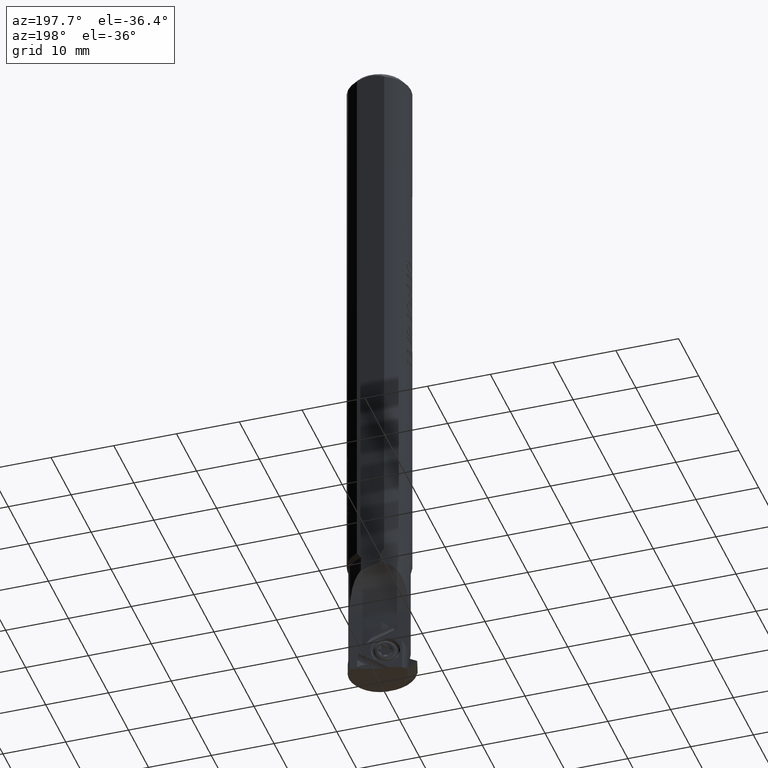
[diagram: clean part render]
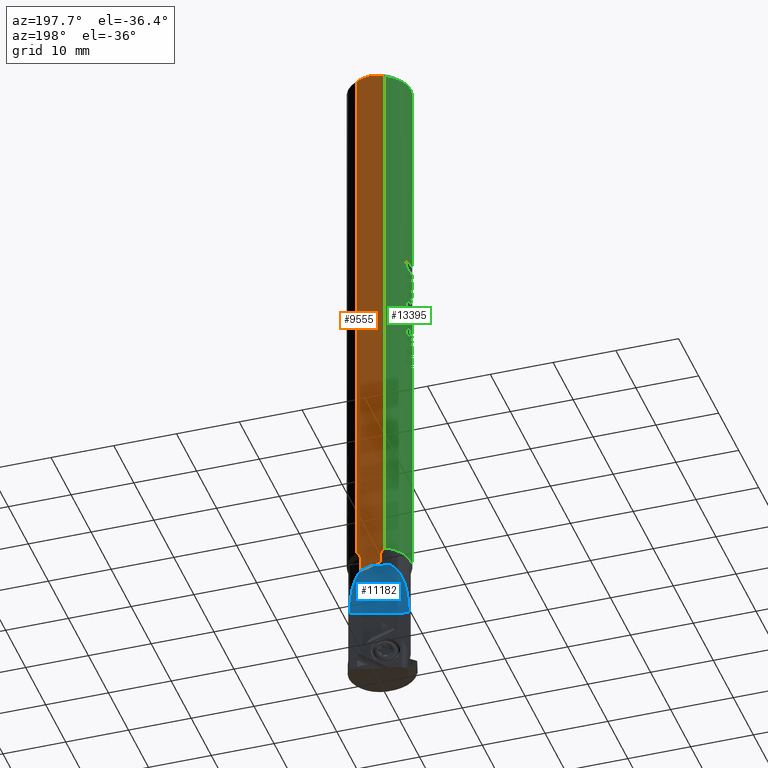
[diagram: same view with three faces highlighted in distinct colors, each labeled with its STEP entity id]
A machine part, auxiliary view with three faces highlighted in distinct colors.
Their STEP definitions:

[orange] entity #9555 — the highlighted planar face has unit normal (0, -1, -0).
#36 = DIRECTION ( 'NONE',  ( 1.000000000000000000, 0.000000000000000000, 0.000000000000000000 ) ) ;
#55 = FACE_OUTER_BOUND ( 'NONE', #8667, .T. ) ;
#152 = CARTESIAN_POINT ( 'NONE',  ( 19.44035398999274022, 25.47579512832781035, 33.55399560036696016 ) ) ;
#160 = LINE ( 'NONE', #12666, #11248 ) ;
#206 = B_SPLINE_CURVE_WITH_KNOTS ( 'NONE', 3,
 ( #5481, #7673, #9646, #278 ),
 .UNSPECIFIED., .F., .F.,
 ( 4, 4 ),
 ( 7.631733714431407189E-15, 0.001197482028348119355 ),
 .UNSPECIFIED. ) ;
#278 = CARTESIAN_POINT ( 'NONE',  ( 19.75597794397289420, 25.47579512831354975, 30.26614510788109058 ) ) ;
#297 = CARTESIAN_POINT ( 'NONE',  ( 18.75597794395271478, 25.47579512832781035, 29.60738626870346835 ) ) ;
#335 = CARTESIAN_POINT ( 'NONE',  ( -70.48523817429727956, 25.47579512832781035, 30.29688049765204383 ) ) ;
#922 =( BOUNDED_CURVE ( )  B_SPLINE_CURVE ( 3, ( #2318, #6512, #11624, #12576 ),
 .UNSPECIFIED., .F., .F. ) 
 B_SPLINE_CURVE_WITH_KNOTS ( ( 4, 4 ),
 ( 2.356194490192340840, 2.431856099856699593 ),
 .UNSPECIFIED. ) 
 CURVE ( )  GEOMETRIC_REPRESENTATION_ITEM ( )  RATIONAL_B_SPLINE_CURVE ( ( 1.000000000000000000, 0.9995230002949517800, 0.9995230002949517800, 1.000000000000000000 ) ) 
 REPRESENTATION_ITEM ( '' )  );
#1083 = DIRECTION ( 'NONE',  ( 0.000000000000000000, -0.000000000000000000, -1.000000000000000000 ) ) ;
#1142 = EDGE_CURVE ( 'NONE', #13289, #7315, #160, .T. ) ;
#1300 = EDGE_CURVE ( 'NONE', #3790, #8642, #2673, .T. ) ;
#1421 = CARTESIAN_POINT ( 'NONE',  ( -70.70641876163659845, 25.47579512832781035, 31.02628767453509440 ) ) ;
#1789 = CARTESIAN_POINT ( 'NONE',  ( 21.27286889090748190, 25.47579512832781390, 30.26614510787627310 ) ) ;
#2318 = CARTESIAN_POINT ( 'NONE',  ( 21.62239992271539180, 25.47579512832781390, 31.49682168337007582 ) ) ;
#2407 = VERTEX_POINT ( 'NONE', #3701 ) ;
#2417 = EDGE_CURVE ( 'NONE', #7259, #7413, #206, .T. ) ;
#2630 = B_SPLINE_CURVE_WITH_KNOTS ( 'NONE', 3,
 ( #5465, #12025, #7599, #12911, #2655, #9633, #6571, #4435, #1421, #335, #8604, #3408 ),
 .UNSPECIFIED., .F., .F.,
 ( 4, 2, 2, 2, 2, 4 ),
 ( 1.287413734939264600E-14, 0.001139650316912863221, 0.001709475475362863886, 0.002279300633812864768, 0.003418950950712866099, 0.004558601267612867429 ),
 .UNSPECIFIED. ) ;
#2655 = CARTESIAN_POINT ( 'NONE',  ( -70.69392922902903820, 25.47579512832781035, 32.54805715777456498 ) ) ;
#2673 = LINE ( 'NONE', #1789, #5348 ) ;
#2750 = DIRECTION ( 'NONE',  ( 0.2732098285050844066, 2.711882266498055721E-15, 0.9619544633755915397 ) ) ;
#3050 = EDGE_CURVE ( 'NONE', #7413, #3790, #5219, .T. ) ;
#3408 = CARTESIAN_POINT ( 'NONE',  ( -70.14402205600359252, 25.47579512832781035, 29.60738626870102763 ) ) ;
#3448 = EDGE_CURVE ( 'NONE', #13205, #2407, #2630, .T. ) ;
#3508 = CARTESIAN_POINT ( 'NONE',  ( 19.75597794394405682, 25.47579512832781035, 33.30752637300096097 ) ) ;
#3701 = CARTESIAN_POINT ( 'NONE',  ( -70.14402205600359252, 25.47579512832781035, 29.60738626870102763 ) ) ;
#3790 = VERTEX_POINT ( 'NONE', #4556 ) ;
#3828 = CARTESIAN_POINT ( 'NONE',  ( 18.75597794395271478, 25.47579512832781035, 33.96628521219827235 ) ) ;
#4252 = CARTESIAN_POINT ( 'NONE',  ( 18.75597794395271478, 25.47579512832781035, 33.96628521219827235 ) ) ;
#4330 = CARTESIAN_POINT ( 'NONE',  ( 83.85597794395874871, 25.47579512832781035, 30.26614510787627310 ) ) ;
#4371 = EDGE_CURVE ( 'NONE', #8642, #13289, #922, .T. ) ;
#4435 = CARTESIAN_POINT ( 'NONE',  ( -70.76942048525550888, 25.47579512832780324, 31.41097564569150791 ) ) ;
#4556 = CARTESIAN_POINT ( 'NONE',  ( 21.27286889090748545, 25.47579512832781035, 30.26614510787628021 ) ) ;
#4844 = VERTEX_POINT ( 'NONE', #3828 ) ;
#5219 = LINE ( 'NONE', #4330, #7063 ) ;
#5245 = LINE ( 'NONE', #5310, #8244 ) ;
#5310 = CARTESIAN_POINT ( 'NONE',  ( -66.24402205604140192, 25.47579512832781035, 29.60738626868051426 ) ) ;
#5348 = VECTOR ( 'NONE', #2750, 1000.000000000000000 ) ;
#5465 = CARTESIAN_POINT ( 'NONE',  ( -70.14402205597831141, 25.47579512832781035, 33.96628521217058250 ) ) ;
#5481 = CARTESIAN_POINT ( 'NONE',  ( 18.75597794395271478, 25.47579512832781035, 29.60738626870346835 ) ) ;
#5529 = B_SPLINE_CURVE_WITH_KNOTS ( 'NONE', 3,
 ( #9445, #152, #9514, #4252 ),
 .UNSPECIFIED., .F., .F.,
 ( 4, 4 ),
 ( 1.249988341023590143E-15, 0.001197482028343748936 ),
 .UNSPECIFIED. ) ;
#6013 = EDGE_CURVE ( 'NONE', #2407, #7259, #5245, .T. ) ;
#6512 = CARTESIAN_POINT ( 'NONE',  ( 21.80077859835308374, 25.47579512832781035, 32.12488167718359477 ) ) ;
#6571 = CARTESIAN_POINT ( 'NONE',  ( -70.76881983774387663, 25.47579512832780679, 31.98046127434393782 ) ) ;
#6917 = CARTESIAN_POINT ( 'NONE',  ( 22.17712812659350519, 25.47579512832781390, 33.30752637302546049 ) ) ;
#7015 = ORIENTED_EDGE ( 'NONE', *, *, #11156, .F. ) ;
#7063 = VECTOR ( 'NONE', #7476, 1000.000000000000000 ) ;
#7182 = CARTESIAN_POINT ( 'NONE',  ( 83.85597794395874871, 25.47579512832781035, 33.96628521222122998 ) ) ;
#7253 = PLANE ( 'NONE',  #9077 ) ;
#7259 = VERTEX_POINT ( 'NONE', #297 ) ;
#7315 = VERTEX_POINT ( 'NONE', #3508 ) ;
#7413 = VERTEX_POINT ( 'NONE', #9049 ) ;
#7476 = DIRECTION ( 'NONE',  ( 1.000000000000000000, 0.000000000000000000, 0.000000000000000000 ) ) ;
#7599 = CARTESIAN_POINT ( 'NONE',  ( -70.48299498487064341, 25.47579512832781035, 33.28233540991279682 ) ) ;
#7673 = CARTESIAN_POINT ( 'NONE',  ( 19.10289286136366727, 25.47579512832781035, 29.80635561965444680 ) ) ;
#7809 = CARTESIAN_POINT ( 'NONE',  ( 21.62239992271539180, 25.47579512832781390, 31.49682168337007582 ) ) ;
#8090 = ORIENTED_EDGE ( 'NONE', *, *, #3448, .F. ) ;
#8141 = CARTESIAN_POINT ( 'NONE',  ( 83.85597794395874871, 25.47579512832781035, 26.77260557254424000 ) ) ;
#8220 = ORIENTED_EDGE ( 'NONE', *, *, #10046, .F. ) ;
#8226 = CARTESIAN_POINT ( 'NONE',  ( -70.14402205597831141, 25.47579512832781035, 33.96628521217058250 ) ) ;
#8244 = VECTOR ( 'NONE', #36, 1000.000000000000000 ) ;
#8389 = ORIENTED_EDGE ( 'NONE', *, *, #2417, .F. ) ;
#8604 = CARTESIAN_POINT ( 'NONE',  ( -70.32785995021846759, 25.47579512832781390, 29.94478871210147375 ) ) ;
#8642 = VERTEX_POINT ( 'NONE', #7809 ) ;
#8667 = EDGE_LOOP ( 'NONE', ( #8220, #10294, #10457, #11642, #9193, #8389, #11037, #8090, #7015 ) ) ;
#9049 = CARTESIAN_POINT ( 'NONE',  ( 19.75597794397289420, 25.47579512831354975, 30.26614510788109058 ) ) ;
#9077 = AXIS2_PLACEMENT_3D ( 'NONE', #8141, #11411, #1083 ) ;
#9193 = ORIENTED_EDGE ( 'NONE', *, *, #3050, .F. ) ;
#9445 = CARTESIAN_POINT ( 'NONE',  ( 19.75597794394405682, 25.47579512832781035, 33.30752637300096097 ) ) ;
#9514 = CARTESIAN_POINT ( 'NONE',  ( 19.10289286136423570, 25.47579512832781035, 33.76731586124696349 ) ) ;
#9555 = ADVANCED_FACE ( 'NONE', ( #55 ), #7253, .F. ) ;
#9633 = CARTESIAN_POINT ( 'NONE',  ( -70.75354856190033104, 25.47579512832781390, 32.16990644828869250 ) ) ;
#9646 = CARTESIAN_POINT ( 'NONE',  ( 19.44035398999910313, 25.47579512832781035, 30.01967588053910418 ) ) ;
#9749 = VECTOR ( 'NONE', #12429, 1000.000000000000000 ) ;
#10046 = EDGE_CURVE ( 'NONE', #7315, #4844, #5529, .T. ) ;
#10294 = ORIENTED_EDGE ( 'NONE', *, *, #1142, .F. ) ;
#10457 = ORIENTED_EDGE ( 'NONE', *, *, #4371, .F. ) ;
#11037 = ORIENTED_EDGE ( 'NONE', *, *, #6013, .F. ) ;
#11156 = EDGE_CURVE ( 'NONE', #4844, #13205, #12488, .T. ) ;
#11248 = VECTOR ( 'NONE', #11639, 1000.000000000000000 ) ;
#11411 = DIRECTION ( 'NONE',  ( 0.000000000000000000, -1.000000000000000000, 0.000000000000000000 ) ) ;
#11624 = CARTESIAN_POINT ( 'NONE',  ( 21.98577624346793868, 25.47579512832781035, 32.72873794633100175 ) ) ;
#11639 = DIRECTION ( 'NONE',  ( -1.000000000000000000, -0.000000000000000000, -0.000000000000000000 ) ) ;
#11642 = ORIENTED_EDGE ( 'NONE', *, *, #1300, .F. ) ;
#12025 = CARTESIAN_POINT ( 'NONE',  ( -70.32746099487889069, 25.47579512833383930, 33.62961498186035669 ) ) ;
#12429 = DIRECTION ( 'NONE',  ( -1.000000000000000000, -0.000000000000000000, -0.000000000000000000 ) ) ;
#12488 = LINE ( 'NONE', #7182, #9749 ) ;
#12576 = CARTESIAN_POINT ( 'NONE',  ( 22.17712812659350519, 25.47579512832781390, 33.30752637302546049 ) ) ;
#12666 = CARTESIAN_POINT ( 'NONE',  ( 83.85597794395874871, 25.47579512832781035, 33.30752637302546049 ) ) ;
#12911 = CARTESIAN_POINT ( 'NONE',  ( -70.64949270034468043, 25.47579512832781390, 32.73601773613502530 ) ) ;
#13205 = VERTEX_POINT ( 'NONE', #8226 ) ;
#13289 = VERTEX_POINT ( 'NONE', #6917 ) ;

[blue] entity #11182 — the highlighted cylindrical surface (partial cylindrical patch) has radius 10 mm, axis along (-0.9588, -0.284, 0).
#76 = LINE ( 'NONE', #9515, #10663 ) ;
#153 = DIRECTION ( 'NONE',  ( 0.000000000000000000, -0.2840153447039163725, -0.9588197348681949395 ) ) ;
#794 = CARTESIAN_POINT ( 'NONE',  ( 26.75889453168043275, 21.29336407492823469, 27.04668755376311395 ) ) ;
#922 =( BOUNDED_CURVE ( )  B_SPLINE_CURVE ( 3, ( #2318, #6512, #11624, #12576 ),
 .UNSPECIFIED., .F., .F. ) 
 B_SPLINE_CURVE_WITH_KNOTS ( ( 4, 4 ),
 ( 2.356194490192340840, 2.431856099856699593 ),
 .UNSPECIFIED. ) 
 CURVE ( )  GEOMETRIC_REPRESENTATION_ITEM ( )  RATIONAL_B_SPLINE_CURVE ( ( 1.000000000000000000, 0.9995230002949517800, 0.9995230002949517800, 1.000000000000000000 ) ) 
 REPRESENTATION_ITEM ( '' )  );
#1429 = B_SPLINE_CURVE_WITH_KNOTS ( 'NONE', 3,
 ( #10441, #12234, #3964, #8071, #11402, #11207, #9287, #13453, #2860, #4092, #2030, #6219, #7043, #6026 ),
 .UNSPECIFIED., .F., .F.,
 ( 4, 2, 2, 2, 2, 2, 4 ),
 ( 0.000000000000000000, 0.001814110515759739892, 0.002721165773639610489, 0.003628221031519481520, 0.004535276289399352116, 0.005442331547279222713, 0.007256442063038964774 ),
 .UNSPECIFIED. ) ;
#1888 = CARTESIAN_POINT ( 'NONE',  ( 28.51894367020813092, 21.10204600583076129, 27.03851385625537063 ) ) ;
#2030 = CARTESIAN_POINT ( 'NONE',  ( 23.65673932183976902, 24.77003788785394889, 34.65088492861810465 ) ) ;
#2307 = EDGE_CURVE ( 'NONE', #8642, #6916, #76, .T. ) ;
#2318 = CARTESIAN_POINT ( 'NONE',  ( 21.62239992271539180, 25.47579512832781390, 31.49682168337007582 ) ) ;
#2422 = DIRECTION ( 'NONE',  ( -0.000000000000000000, 0.2840153447039163725, 0.9588197348681949395 ) ) ;
#2842 = CARTESIAN_POINT ( 'NONE',  ( 26.07557890879294860, 21.46426662738315372, 27.06124049093840256 ) ) ;
#2860 = CARTESIAN_POINT ( 'NONE',  ( 24.43070198793236969, 24.45585699338186458, 35.02353063573293213 ) ) ;
#2909 = CARTESIAN_POINT ( 'NONE',  ( 27.10504656279777436, 21.22769811437931509, 27.04329453156602625 ) ) ;
#3192 = LINE ( 'NONE', #12763, #10337 ) ;
#3766 = EDGE_CURVE ( 'NONE', #7177, #11554, #3192, .T. ) ;
#3942 = CARTESIAN_POINT ( 'NONE',  ( 24.74930045069158169, 21.96898347147812558, 27.13874175754741458 ) ) ;
#3955 = ORIENTED_EDGE ( 'NONE', *, *, #4371, .T. ) ;
#3964 = CARTESIAN_POINT ( 'NONE',  ( 27.30344354774005211, 23.73499238995019311, 35.65537830436899469 ) ) ;
#4008 = CARTESIAN_POINT ( 'NONE',  ( 22.63097112949893841, 23.43656993666291299, 27.72188342910645886 ) ) ;
#4092 = CARTESIAN_POINT ( 'NONE',  ( 23.90965891337507188, 24.66148936129325264, 34.78728278228206250 ) ) ;
#4166 = B_SPLINE_CURVE_WITH_KNOTS ( 'NONE', 3,
 ( #10159, #5864, #13163, #5932, #11259, #13235, #4008, #5096, #6071, #9269, #5036, #3942, #10028, #9204, #2842, #794, #2909, #11327, #7984, #10091 ),
 .UNSPECIFIED., .F., .F.,
 ( 4, 2, 2, 2, 2, 2, 2, 2, 2, 4 ),
 ( 6.009258394948636926E-18, 0.001060431970542691053, 0.001590647955814033544, 0.002120863941085376035, 0.003181295911628064920, 0.004241727882170753805, 0.005302159852713442256, 0.006362591823256130708, 0.007423023793798820026, 0.008483455764341507610 ),
 .UNSPECIFIED. ) ;
#4371 = EDGE_CURVE ( 'NONE', #8642, #13289, #922, .T. ) ;
#5036 = CARTESIAN_POINT ( 'NONE',  ( 24.12894266753502492, 22.29759550520240907, 27.22130789335945167 ) ) ;
#5096 = CARTESIAN_POINT ( 'NONE',  ( 22.99529724786738072, 23.09907096479918565, 27.52993551544913942 ) ) ;
#5186 = ORIENTED_EDGE ( 'NONE', *, *, #6201, .F. ) ;
#5864 = CARTESIAN_POINT ( 'NONE',  ( 21.74967262398361711, 24.47097827973565387, 28.55273595461589409 ) ) ;
#5932 = CARTESIAN_POINT ( 'NONE',  ( 22.19234793438398157, 23.90126428314117391, 28.04162532477063152 ) ) ;
#6026 = CARTESIAN_POINT ( 'NONE',  ( 22.17712812659350519, 25.47579512832781390, 33.30752637302546049 ) ) ;
#6071 = CARTESIAN_POINT ( 'NONE',  ( 23.26371461702866128, 22.88107859912870623, 27.43040043496589675 ) ) ;
#6201 = EDGE_CURVE ( 'NONE', #6916, #7177, #4166, .T. ) ;
#6219 = CARTESIAN_POINT ( 'NONE',  ( 22.93670701857153915, 25.09691505495648300, 34.17955261299875502 ) ) ;
#6512 = CARTESIAN_POINT ( 'NONE',  ( 21.80077859835308374, 25.47579512832781035, 32.12488167718359477 ) ) ;
#6893 = ORIENTED_EDGE ( 'NONE', *, *, #2307, .F. ) ;
#6916 = VERTEX_POINT ( 'NONE', #10763 ) ;
#6917 = CARTESIAN_POINT ( 'NONE',  ( 22.17712812659350519, 25.47579512832781390, 33.30752637302546049 ) ) ;
#7043 = CARTESIAN_POINT ( 'NONE',  ( 22.52155901400623250, 25.31134508707302544, 33.79416393742846481 ) ) ;
#7177 = VERTEX_POINT ( 'NONE', #1888 ) ;
#7809 = CARTESIAN_POINT ( 'NONE',  ( 21.62239992271539180, 25.47579512832781390, 31.49682168337007582 ) ) ;
#7984 = CARTESIAN_POINT ( 'NONE',  ( 28.16221190072230129, 21.10859176894191691, 27.03868789844477050 ) ) ;
#8071 = CARTESIAN_POINT ( 'NONE',  ( 26.41649722901739850, 23.88782024899625611, 35.54005868492722442 ) ) ;
#8326 = CARTESIAN_POINT ( 'NONE',  ( 28.69346773458089572, 35.89869200681509653, 41.78715093572464667 ) ) ;
#8642 = VERTEX_POINT ( 'NONE', #7809 ) ;
#9090 = FACE_OUTER_BOUND ( 'NONE', #12942, .T. ) ;
#9177 = ORIENTED_EDGE ( 'NONE', *, *, #11234, .F. ) ;
#9190 = ORIENTED_EDGE ( 'NONE', *, *, #3766, .F. ) ;
#9204 = CARTESIAN_POINT ( 'NONE',  ( 25.73841272238279387, 21.56949640076710040, 27.07235139341714358 ) ) ;
#9223 = DIRECTION ( 'NONE',  ( 0.000000000000000000, 0.9588197348681949395, -0.2840153447039162060 ) ) ;
#9269 = CARTESIAN_POINT ( 'NONE',  ( 23.83132214758520462, 22.48012467109452928, 27.27622311002667388 ) ) ;
#9287 = CARTESIAN_POINT ( 'NONE',  ( 25.25593577830117198, 24.17756745459901424, 35.29779503092674275 ) ) ;
#9515 = CARTESIAN_POINT ( 'NONE',  ( 21.62239992271543088, 29.11881264220721377, 43.79544269773638376 ) ) ;
#10028 = CARTESIAN_POINT ( 'NONE',  ( 25.07386312299716735, 21.82222764246366609, 27.11111164055620293 ) ) ;
#10091 = CARTESIAN_POINT ( 'NONE',  ( 28.51894367020813092, 21.10204600583076129, 27.03851385625537063 ) ) ;
#10159 = CARTESIAN_POINT ( 'NONE',  ( 21.62239992271543088, 24.68146973925084708, 28.81522411071851408 ) ) ;
#10337 = VECTOR ( 'NONE', #2422, 1000.000000000000000 ) ;
#10441 = CARTESIAN_POINT ( 'NONE',  ( 28.51894367020813092, 23.66779947241574078, 35.70035239576381514 ) ) ;
#10663 = VECTOR ( 'NONE', #153, 1000.000000000000000 ) ;
#10763 = CARTESIAN_POINT ( 'NONE',  ( 21.62239992271543088, 24.68146973925084708, 28.81522411071851408 ) ) ;
#11182 = ADVANCED_FACE ( 'NONE', ( #9090 ), #11344, .F. ) ;
#11207 = CARTESIAN_POINT ( 'NONE',  ( 25.54378556479010243, 24.09443148100379872, 35.37089687564665041 ) ) ;
#11234 = EDGE_CURVE ( 'NONE', #11554, #13289, #1429, .T. ) ;
#11259 = CARTESIAN_POINT ( 'NONE',  ( 22.29569030618282710, 23.78382437643497838, 27.95311817242159336 ) ) ;
#11281 = DIRECTION ( 'NONE',  ( 0.000000000000000000, -0.2840153447039163725, -0.9588197348681949395 ) ) ;
#11327 = CARTESIAN_POINT ( 'NONE',  ( 27.80608800926335533, 21.13530104695998091, 27.03928940821864302 ) ) ;
#11344 = CYLINDRICAL_SURFACE ( 'NONE', #12148, 9.999999999999994671 ) ;
#11402 = CARTESIAN_POINT ( 'NONE',  ( 26.12362085781346721, 23.94977019848552047, 35.49181336563749056 ) ) ;
#11554 = VERTEX_POINT ( 'NONE', #11941 ) ;
#11624 = CARTESIAN_POINT ( 'NONE',  ( 21.98577624346793868, 25.47579512832781035, 32.72873794633100175 ) ) ;
#11941 = CARTESIAN_POINT ( 'NONE',  ( 28.51894367020813092, 23.66779947241574078, 35.70035239576381514 ) ) ;
#12148 = AXIS2_PLACEMENT_3D ( 'NONE', #8326, #11281, #9223 ) ;
#12234 = CARTESIAN_POINT ( 'NONE',  ( 27.90571264834067833, 23.67707352699889967, 35.69397301950861845 ) ) ;
#12576 = CARTESIAN_POINT ( 'NONE',  ( 22.17712812659350519, 25.47579512832781390, 33.30752637302546049 ) ) ;
#12763 = CARTESIAN_POINT ( 'NONE',  ( 28.51894367020813092, 26.31195498703083757, 44.62687181363722999 ) ) ;
#12942 = EDGE_LOOP ( 'NONE', ( #9177, #9190, #5186, #6893, #3955 ) ) ;
#13163 = CARTESIAN_POINT ( 'NONE',  ( 21.90802614080115873, 24.24675880680526419, 28.32949862237611427 ) ) ;
#13235 = CARTESIAN_POINT ( 'NONE',  ( 22.51526277336387238, 23.55125455214059116, 27.79316231790671310 ) ) ;
#13289 = VERTEX_POINT ( 'NONE', #6917 ) ;
#13453 = CARTESIAN_POINT ( 'NONE',  ( 24.70017981162822096, 24.35811061542211320, 35.12421841470576567 ) ) ;

[green] entity #13395 — the highlighted cylindrical surface (edge-blend (fillet) strip) has radius 5 mm, axis along (0, -0, 1).
#5 = LINE ( 'NONE', #4251, #9550 ) ;
#8 = CARTESIAN_POINT ( 'NONE',  ( -24.62657200054320228, 22.27218219918557551, 26.95746732261997280 ) ) ;
#14 = ORIENTED_EDGE ( 'NONE', *, *, #3946, .T. ) ;
#36 = DIRECTION ( 'NONE',  ( 1.000000000000000000, 0.000000000000000000, 0.000000000000000000 ) ) ;
#45 = CARTESIAN_POINT ( 'NONE',  ( -34.29530410732335355, 19.97579512832780679, 26.88785625488450748 ) ) ;
#167 = CARTESIAN_POINT ( 'NONE',  ( -28.99614449326852395, 19.92166694932682347, 26.89916860686837197 ) ) ;
#221 = VERTEX_POINT ( 'NONE', #7327 ) ;
#233 = CARTESIAN_POINT ( 'NONE',  ( -33.91068872270795964, 22.21938487191755485, 26.94395596188538633 ) ) ;
#251 = CARTESIAN_POINT ( 'NONE',  ( -35.44915026116949974, 21.22479352576370459, 26.79303960944247365 ) ) ;
#272 = DIRECTION ( 'NONE',  ( -1.000000000000000000, -0.000000000000000000, -0.000000000000000000 ) ) ;
#297 = CARTESIAN_POINT ( 'NONE',  ( 18.75597794395271478, 25.47579512832781035, 29.60738626870346835 ) ) ;
#306 = CARTESIAN_POINT ( 'NONE',  ( -26.47479128681053240, 22.21938487191755485, 26.94395596188538633 ) ) ;
#372 = VERTEX_POINT ( 'NONE', #8676 ) ;
#408 = VERTEX_POINT ( 'NONE', #7867 ) ;
#415 = CARTESIAN_POINT ( 'NONE',  ( -29.38940422294702870, 22.33061785363702967, 26.97311908932921654 ) ) ;
#425 = EDGE_LOOP ( 'NONE', ( #10018, #13038, #3758, #5867 ) ) ;
#463 = CARTESIAN_POINT ( 'NONE',  ( -34.51966308168231734, 19.97579512832780679, 26.88785625488450748 ) ) ;
#465 = EDGE_CURVE ( 'NONE', #4012, #1072, #3137, .T. ) ;
#487 =( BOUNDED_CURVE ( )  B_SPLINE_CURVE ( 3, ( #306, #10558, #10494, #11459 ),
 .UNSPECIFIED., .F., .F. ) 
 B_SPLINE_CURVE_WITH_KNOTS ( ( 4, 4 ),
 ( 4.963745364533654225, 5.017081634400086365 ),
 .UNSPECIFIED. ) 
 CURVE ( )  GEOMETRIC_REPRESENTATION_ITEM ( )  RATIONAL_B_SPLINE_CURVE ( ( 1.000000000000000000, 0.9997629509091279232, 0.9997629509091279232, 1.000000000000000000 ) ) 
 REPRESENTATION_ITEM ( '' )  );
#530 = ORIENTED_EDGE ( 'NONE', *, *, #10746, .T. ) ;
#534 = AXIS2_PLACEMENT_3D ( 'NONE', #10335, #8291, #12455 ) ;
#542 = DIRECTION ( 'NONE',  ( 0.000000000000000000, 0.000000000000000000, 1.000000000000000000 ) ) ;
#554 = CIRCLE ( 'NONE', #2729, 5.000000000000004441 ) ;
#570 = ORIENTED_EDGE ( 'NONE', *, *, #12953, .T. ) ;
#576 = CARTESIAN_POINT ( 'NONE',  ( -18.33376564578488654, 19.97579512832780679, 26.88785625488450748 ) ) ;
#593 = DIRECTION ( 'NONE',  ( -1.000000000000000000, -0.000000000000000000, -0.000000000000000000 ) ) ;
#653 = CARTESIAN_POINT ( 'NONE',  ( -66.24402205604140192, 22.47579512832781035, 27.01713973336613250 ) ) ;
#670 = ORIENTED_EDGE ( 'NONE', *, *, #6013, .T. ) ;
#678 = ORIENTED_EDGE ( 'NONE', *, *, #4885, .T. ) ;
#703 = CARTESIAN_POINT ( 'NONE',  ( -19.64786820988745220, 22.21938487191755485, 26.94395596188538278 ) ) ;
#718 = CARTESIAN_POINT ( 'NONE',  ( -24.26031019187739091, 20.35571869830673108, 26.81030468090909480 ) ) ;
#720 = CARTESIAN_POINT ( 'NONE',  ( -35.75029361622424773, 20.12036309748285134, 26.85984974483661958 ) ) ;
#731 = EDGE_CURVE ( 'NONE', #10284, #5024, #13065, .T. ) ;
#751 = CYLINDRICAL_SURFACE ( 'NONE', #12672, 5.000000000000004441 ) ;
#764 = ORIENTED_EDGE ( 'NONE', *, *, #11471, .T. ) ;
#765 = DIRECTION ( 'NONE',  ( 1.000000000000000000, 0.000000000000000000, 0.000000000000000000 ) ) ;
#773 = VECTOR ( 'NONE', #10059, 1000.000000000000000 ) ;
#782 = CIRCLE ( 'NONE', #9954, 5.000000000000004441 ) ;
#803 = AXIS2_PLACEMENT_3D ( 'NONE', #3666, #10031, #6615 ) ;
#846 = VERTEX_POINT ( 'NONE', #13019 ) ;
#849 = VERTEX_POINT ( 'NONE', #4754 ) ;
#907 = VERTEX_POINT ( 'NONE', #5026 ) ;
#912 = ORIENTED_EDGE ( 'NONE', *, *, #968, .T. ) ;
#919 = CARTESIAN_POINT ( 'NONE',  ( -30.54029609450283544, 20.95686483986627380, 26.78687157616140624 ) ) ;
#929 = CARTESIAN_POINT ( 'NONE',  ( -24.21152781086836825, 22.46086163021362125, 27.01242714034356496 ) ) ;
#962 = VECTOR ( 'NONE', #2206, 1000.000000000000000 ) ;
#966 = CARTESIAN_POINT ( 'NONE',  ( -24.37673782594277938, 22.42384761907760904, 27.00107621312692174 ) ) ;
#968 = EDGE_CURVE ( 'NONE', #5363, #6668, #3093, .T. ) ;
#976 = CARTESIAN_POINT ( 'NONE',  ( -36.28498760091309805, 22.53989769243037244, 27.03777444699845844 ) ) ;
#997 =( BOUNDED_CURVE ( )  B_SPLINE_CURVE ( 3, ( #6232, #12643, #6101, #1921 ),
 .UNSPECIFIED., .F., .F. ) 
 B_SPLINE_CURVE_WITH_KNOTS ( ( 4, 4 ),
 ( 1.369438406004566122, 1.529538629409105344 ),
 .UNSPECIFIED. ) 
 CURVE ( )  GEOMETRIC_REPRESENTATION_ITEM ( )  RATIONAL_B_SPLINE_CURVE ( ( 1.000000000000000000, 0.9978651335931294497, 0.9978651335931294497, 1.000000000000000000 ) ) 
 REPRESENTATION_ITEM ( '' )  );
#1022 = CARTESIAN_POINT ( 'NONE',  ( -31.50684256886181345, 19.97579512832780679, 26.88785625488450748 ) ) ;
#1030 = ORIENTED_EDGE ( 'NONE', *, *, #4132, .T. ) ;
#1043 = ORIENTED_EDGE ( 'NONE', *, *, #10802, .T. ) ;
#1072 = VERTEX_POINT ( 'NONE', #5557 ) ;
#1118 = DIRECTION ( 'NONE',  ( -1.000000000000000000, -0.000000000000000000, -0.000000000000000000 ) ) ;
#1125 = DIRECTION ( 'NONE',  ( 1.000000000000000000, 0.000000000000000000, 0.000000000000000000 ) ) ;
#1127 = CARTESIAN_POINT ( 'NONE',  ( -27.08376564578487944, 22.47579512832781035, 27.01713973336613250 ) ) ;
#1211 = CARTESIAN_POINT ( 'NONE',  ( -30.67350923552847419, 20.76956516037909495, 26.79109063082808717 ) ) ;
#1259 = CARTESIAN_POINT ( 'NONE',  ( -66.24402205604140192, 19.97579512832780679, 26.88785625488450748 ) ) ;
#1261 = CARTESIAN_POINT ( 'NONE',  ( -31.04242460807803639, 20.62704407977764731, 26.78812030553704204 ) ) ;
#1271 = CARTESIAN_POINT ( 'NONE',  ( 18.75597794394730400, 16.47579512832781390, 29.60738626870036683 ) ) ;
#1280 = EDGE_CURVE ( 'NONE', #4986, #5822, #7926, .T. ) ;
#1301 = CARTESIAN_POINT ( 'NONE',  ( -29.70414058946323266, 21.52087826416798322, 26.81448193147934589 ) ) ;
#1303 = AXIS2_PLACEMENT_3D ( 'NONE', #1726, #13408, #4048 ) ;
#1332 = EDGE_CURVE ( 'NONE', #11611, #5490, #2817, .T. ) ;
#1353 =( BOUNDED_CURVE ( )  B_SPLINE_CURVE ( 3, ( #7969, #10571, #2688, #13149 ),
 .UNSPECIFIED., .F., .T. ) 
 B_SPLINE_CURVE_WITH_KNOTS ( ( 4, 4 ),
 ( 4.963745364533655113, 5.017081634400087253 ),
 .UNSPECIFIED. ) 
 CURVE ( )  GEOMETRIC_REPRESENTATION_ITEM ( )  RATIONAL_B_SPLINE_CURVE ( ( 1.000000000000000000, 0.9997629509091279232, 0.9997629509091279232, 1.000000000000000000 ) ) 
 REPRESENTATION_ITEM ( '' )  );
#1393 = CIRCLE ( 'NONE', #6433, 5.000000000000004441 ) ;
#1425 = CARTESIAN_POINT ( 'NONE',  ( -24.80647896913746919, 21.75498225432846411, 26.84763799322551847 ) ) ;
#1438 = CARTESIAN_POINT ( 'NONE',  ( -28.01325282527205474, 21.22479352576370459, 26.79303960944247365 ) ) ;
#1467 = CARTESIAN_POINT ( 'NONE',  ( -23.46197077399001074, 20.97579512832781035, 31.78683574045086502 ) ) ;
#1475 = DIRECTION ( 'NONE',  ( 0.000000000000000000, 0.000000000000000000, 1.000000000000000000 ) ) ;
#1483 = LINE ( 'NONE', #9831, #13402 ) ;
#1484 = CARTESIAN_POINT ( 'NONE',  ( -35.45001203387805333, 21.37217316518368193, 26.80038818616997887 ) ) ;
#1511 = LINE ( 'NONE', #2328, #7202 ) ;
#1512 = EDGE_CURVE ( 'NONE', #5301, #10284, #13044, .T. ) ;
#1513 = CARTESIAN_POINT ( 'NONE',  ( -28.77436955659437601, 22.53864345745208198, 27.03736136491246000 ) ) ;
#1549 = CARTESIAN_POINT ( 'NONE',  ( -36.43204192916599737, 19.92166694932680926, 26.89916860686840039 ) ) ;
#1588 = DIRECTION ( 'NONE',  ( 0.000000000000000000, 0.000000000000000000, 1.000000000000000000 ) ) ;
#1594 = VERTEX_POINT ( 'NONE', #2864 ) ;
#1630 = VECTOR ( 'NONE', #765, 1000.000000000000000 ) ;
#1698 = EDGE_CURVE ( 'NONE', #1594, #12031, #8434, .T. ) ;
#1702 = VERTEX_POINT ( 'NONE', #7112 ) ;
#1712 = DIRECTION ( 'NONE',  ( 0.000000000000000000, 0.000000000000000000, 1.000000000000000000 ) ) ;
#1723 = VERTEX_POINT ( 'NONE', #6222 ) ;
#1725 = ORIENTED_EDGE ( 'NONE', *, *, #2680, .T. ) ;
#1726 = CARTESIAN_POINT ( 'NONE',  ( -70.14402205604123708, 20.97579512832781035, 31.78683574045086502 ) ) ;
#1733 = CARTESIAN_POINT ( 'NONE',  ( -34.05742349834898874, 22.47579512832781035, 27.01713973336613250 ) ) ;
#1737 = CARTESIAN_POINT ( 'NONE',  ( -24.56273199193872969, 19.97579512832780679, 26.88785625488450393 ) ) ;
#1740 = CARTESIAN_POINT ( 'NONE',  ( -32.37222718424642665, 19.97579512832780679, 26.88785625488450748 ) ) ;
#1751 = CARTESIAN_POINT ( 'NONE',  ( -35.48615938318024376, 20.71797219501207366, 26.79297018517093676 ) ) ;
#1796 = EDGE_CURVE ( 'NONE', #12637, #4012, #12677, .T. ) ;
#1809 =( BOUNDED_CURVE ( )  B_SPLINE_CURVE ( 3, ( #919, #10291, #8999, #12346 ),
 .UNSPECIFIED., .F., .F. ) 
 B_SPLINE_CURVE_WITH_KNOTS ( ( 4, 4 ),
 ( 1.567010260057491999, 1.736944311185258494 ),
 .UNSPECIFIED. ) 
 CURVE ( )  GEOMETRIC_REPRESENTATION_ITEM ( )  RATIONAL_B_SPLINE_CURVE ( ( 1.000000000000000000, 0.9975949822758760632, 0.9975949822758760632, 1.000000000000000000 ) ) 
 REPRESENTATION_ITEM ( '' )  );
#1813 = DIRECTION ( 'NONE',  ( -1.000000000000000000, -0.000000000000000000, -0.000000000000000000 ) ) ;
#1816 = CARTESIAN_POINT ( 'NONE',  ( -35.99654019309053155, 19.96505614414172669, 26.89001123946909644 ) ) ;
#1842 = DIRECTION ( 'NONE',  ( -1.000000000000000000, -0.000000000000000000, -0.000000000000000000 ) ) ;
#1856 = ORIENTED_EDGE ( 'NONE', *, *, #5336, .T. ) ;
#1864 = B_SPLINE_CURVE_WITH_KNOTS ( 'NONE', 3,
 ( #1438, #11767, #10669, #3702, #3560, #4731, #7744, #9647, #6522, #5761, #1513, #11835 ),
 .UNSPECIFIED., .F., .F.,
 ( 4, 2, 2, 2, 2, 4 ),
 ( 0.000000000000000000, 0.0004387937458311253055, 0.0008775874916622506110, 0.001316381237493375808, 0.001535778110408942635, 0.001755174983324509462 ),
 .UNSPECIFIED. ) ;
#1868 = CARTESIAN_POINT ( 'NONE',  ( -18.10940667142590854, 22.21938487191755485, 26.94395596188538633 ) ) ;
#1882 = CARTESIAN_POINT ( 'NONE',  ( -24.56273199193872969, 19.97579512832780679, 26.88785625488450393 ) ) ;
#1914 = ORIENTED_EDGE ( 'NONE', *, *, #11748, .T. ) ;
#1921 = CARTESIAN_POINT ( 'NONE',  ( -30.67350923552847419, 20.76956516037909495, 26.79109063082808717 ) ) ;
#1940 = VERTEX_POINT ( 'NONE', #576 ) ;
#1945 = CARTESIAN_POINT ( 'NONE',  ( -36.82530165884450923, 22.33061785363699414, 26.97311908932921298 ) ) ;
#1950 = CARTESIAN_POINT ( 'NONE',  ( -29.70450366033010425, 20.92980756065346881, 26.78490850262978640 ) ) ;
#1951 = CARTESIAN_POINT ( 'NONE',  ( -36.21097293429039610, 19.91294299899123743, 26.90110682974260925 ) ) ;
#1961 = CARTESIAN_POINT ( 'NONE',  ( -26.85940667142590499, 19.97579512832780679, 26.88785625488450748 ) ) ;
#1968 = DIRECTION ( 'NONE',  ( -1.000000000000000000, -0.000000000000000000, -0.000000000000000000 ) ) ;
#1969 = CARTESIAN_POINT ( 'NONE',  ( -66.24402205604140192, 21.80271820525088344, 26.85569000899533521 ) ) ;
#2006 = CARTESIAN_POINT ( 'NONE',  ( -36.43366549289167011, 22.52981095699289327, 27.03440961435426715 ) ) ;
#2025 = CARTESIAN_POINT ( 'NONE',  ( -20.25684256886180279, 19.97579512832780679, 26.88785625488450748 ) ) ;
#2106 = VERTEX_POINT ( 'NONE', #13288 ) ;
#2110 = VECTOR ( 'NONE', #8753, 1000.000000000000000 ) ;
#2111 = CARTESIAN_POINT ( 'NONE',  ( -35.44915026116949974, 21.22479352576370459, 26.79303960944247365 ) ) ;
#2132 = EDGE_CURVE ( 'NONE', #4943, #408, #12216, .T. ) ;
#2146 = CARTESIAN_POINT ( 'NONE',  ( -31.14376163937462749, 21.80271820525088344, 26.85569000899533521 ) ) ;
#2147 = CARTESIAN_POINT ( 'NONE',  ( -31.98761179963103984, 22.21938487191755485, 26.94395596188538633 ) ) ;
#2148 = CARTESIAN_POINT ( 'NONE',  ( -29.32575519688021970, 20.07720640171935145, 26.86807492807995246 ) ) ;
#2185 = CARTESIAN_POINT ( 'NONE',  ( -24.80812462014385389, 21.80722541678934689, 26.85644795900519100 ) ) ;
#2198 = EDGE_LOOP ( 'NONE', ( #13501, #6215, #10281, #6740, #2645, #764 ) ) ;
#2206 = DIRECTION ( 'NONE',  ( -1.000000000000000000, -0.000000000000000000, -0.000000000000000000 ) ) ;
#2216 = CARTESIAN_POINT ( 'NONE',  ( -30.80722317783617115, 20.95686483986627380, 26.78687157616140624 ) ) ;
#2245 = CARTESIAN_POINT ( 'NONE',  ( -24.34279067745380587, 21.17532815228601351, 26.79078015723533213 ) ) ;
#2273 = CARTESIAN_POINT ( 'NONE',  ( -29.38149050858151412, 20.12724264291406229, 26.85904257378613735 ) ) ;
#2294 = LINE ( 'NONE', #8455, #9726 ) ;
#2301 = DIRECTION ( 'NONE',  ( 0.000000000000000000, 0.000000000000000000, 1.000000000000000000 ) ) ;
#2327 = CARTESIAN_POINT ( 'NONE',  ( -29.20754837786640934, 22.45431191638239810, 27.01024268043246934 ) ) ;
#2328 = CARTESIAN_POINT ( 'NONE',  ( -66.24402205604140192, 19.97579512832780679, 26.88785625488450748 ) ) ;
#2363 = CARTESIAN_POINT ( 'NONE',  ( -36.57281277784345974, 19.96437096474801010, 26.89015345672108026 ) ) ;
#2364 = ORIENTED_EDGE ( 'NONE', *, *, #8333, .T. ) ;
#2390 =( BOUNDED_CURVE ( )  B_SPLINE_CURVE ( 3, ( #6484, #11861, #3589, #11728 ),
 .UNSPECIFIED., .F., .T. ) 
 B_SPLINE_CURVE_WITH_KNOTS ( ( 4, 4 ),
 ( 4.963745364533654225, 5.017081634400086365 ),
 .UNSPECIFIED. ) 
 CURVE ( )  GEOMETRIC_REPRESENTATION_ITEM ( )  RATIONAL_B_SPLINE_CURVE ( ( 1.000000000000000000, 0.9997629509091279232, 0.9997629509091279232, 1.000000000000000000 ) ) 
 REPRESENTATION_ITEM ( '' )  );
#2407 = VERTEX_POINT ( 'NONE', #3701 ) ;
#2414 = EDGE_CURVE ( 'NONE', #5581, #11267, #1511, .T. ) ;
#2471 = DIRECTION ( 'NONE',  ( 1.000000000000000000, 0.000000000000000000, 0.000000000000000000 ) ) ;
#2542 = CARTESIAN_POINT ( 'NONE',  ( -30.67350923552847419, 21.14366371807139444, 26.78965452134568537 ) ) ;
#2546 = CARTESIAN_POINT ( 'NONE',  ( -22.37222718424641954, 20.97579512832781035, 31.78683574045086502 ) ) ;
#2549 = CARTESIAN_POINT ( 'NONE',  ( -33.91068872270795964, 22.21938487191755485, 26.94395596188538633 ) ) ;
#2561 = CARTESIAN_POINT ( 'NONE',  ( -20.03248359450283900, 20.97579512832781035, 31.78683574045086502 ) ) ;
#2580 = VERTEX_POINT ( 'NONE', #10515 ) ;
#2604 = CARTESIAN_POINT ( 'NONE',  ( -29.61045213903432227, 21.95086265961569083, 26.88231607440729931 ) ) ;
#2606 = DIRECTION ( 'NONE',  ( -1.000000000000000000, -0.000000000000000000, -0.000000000000000000 ) ) ;
#2627 = VERTEX_POINT ( 'NONE', #5610 ) ;
#2634 = DIRECTION ( 'NONE',  ( 1.000000000000000000, 0.000000000000000000, 0.000000000000000000 ) ) ;
#2645 = ORIENTED_EDGE ( 'NONE', *, *, #6825, .T. ) ;
#2653 = ORIENTED_EDGE ( 'NONE', *, *, #12193, .T. ) ;
#2659 = CARTESIAN_POINT ( 'NONE',  ( -24.02801929535756997, 21.13089607873623876, 26.78924179224049595 ) ) ;
#2680 = EDGE_CURVE ( 'NONE', #11709, #3945, #4444, .T. ) ;
#2688 = CARTESIAN_POINT ( 'NONE',  ( -32.08581311823825644, 22.39098581091720064, 26.99046843692985220 ) ) ;
#2729 = AXIS2_PLACEMENT_3D ( 'NONE', #10977, #4229, #12701 ) ;
#2749 = ORIENTED_EDGE ( 'NONE', *, *, #10954, .T. ) ;
#2770 = CARTESIAN_POINT ( 'NONE',  ( -37.10525823889927466, 21.73830120286680767, 26.84477756668015402 ) ) ;
#2779 = CARTESIAN_POINT ( 'NONE',  ( -36.13819365831852792, 19.92202683280545372, 26.89909026150857585 ) ) ;
#2791 = LINE ( 'NONE', #8064, #6495 ) ;
#2809 = CARTESIAN_POINT ( 'NONE',  ( -18.33376564578488654, 20.97579512832781035, 31.78683574045086502 ) ) ;
#2817 = LINE ( 'NONE', #5972, #1630 ) ;
#2864 = CARTESIAN_POINT ( 'NONE',  ( -17.72479128681052174, 22.21938487191755485, 26.94395596188538633 ) ) ;
#2868 = EDGE_CURVE ( 'NONE', #5490, #9517, #1353, .T. ) ;
#2887 = CARTESIAN_POINT ( 'NONE',  ( -30.98816756658475668, 21.58465452070192114, 26.81912205850014885 ) ) ;
#2924 = CIRCLE ( 'NONE', #10559, 5.000000000000004441 ) ;
#2931 = VECTOR ( 'NONE', #11374, 1000.000000000000000 ) ;
#2951 = VERTEX_POINT ( 'NONE', #1740 ) ;
#2982 = CARTESIAN_POINT ( 'NONE',  ( -36.28498760091309805, 19.91169256422524469, 26.90137918726462374 ) ) ;
#3000 = LINE ( 'NONE', #7308, #9036 ) ;
#3028 = B_SPLINE_CURVE_WITH_KNOTS ( 'NONE', 3,
 ( #2982, #1951, #2779, #1816, #9066, #720, #8113, #4969, #6959, #13433, #1751, #4074, #8248, #3044 ),
 .UNSPECIFIED., .F., .F.,
 ( 4, 2, 2, 2, 2, 2, 4 ),
 ( 0.000000000000000000, 0.0002200429448387340985, 0.0004400858896774681971, 0.0008801717793549352015, 0.001100214724193668541, 0.001320257669032402206, 0.001760343558709858260 ),
 .UNSPECIFIED. ) ;
#3043 = CARTESIAN_POINT ( 'NONE',  ( -29.47613542178163470, 20.23871802815334320, 26.84114022188849447 ) ) ;
#3044 = CARTESIAN_POINT ( 'NONE',  ( -35.44915026116949974, 21.22479352576370459, 26.79303960944247365 ) ) ;
#3062 = CARTESIAN_POINT ( 'NONE',  ( 18.75597794395869755, 20.97579512832781035, 31.78683574045086502 ) ) ;
#3070 = DIRECTION ( 'NONE',  ( 1.000000000000000000, 0.000000000000000000, 0.000000000000000000 ) ) ;
#3093 = LINE ( 'NONE', #8170, #2931 ) ;
#3099 = LINE ( 'NONE', #11516, #962 ) ;
#3101 = CARTESIAN_POINT ( 'NONE',  ( -23.64426244065667859, 21.12964128217396365, 26.78920316482600583 ) ) ;
#3125 = CARTESIAN_POINT ( 'NONE',  ( -17.82299260541774544, 22.39098581091720064, 26.99046843692985220 ) ) ;
#3131 = AXIS2_PLACEMENT_3D ( 'NONE', #3062, #1968, #4358 ) ;
#3137 = CIRCLE ( 'NONE', #11451, 5.000000000000004441 ) ;
#3210 = CARTESIAN_POINT ( 'NONE',  ( -66.24402205604140192, 22.21938487191755485, 26.94395596188538633 ) ) ;
#3244 = CARTESIAN_POINT ( 'NONE',  ( -30.54029609450283544, 20.95686483986627380, 26.78687157616140624 ) ) ;
#3288 = CARTESIAN_POINT ( 'NONE',  ( -24.80686806757136509, 21.88107975935795224, 26.86890230135466950 ) ) ;
#3311 = CARTESIAN_POINT ( 'NONE',  ( -30.80722317783617115, 20.95686483986627380, 26.78687157616140624 ) ) ;
#3336 = CARTESIAN_POINT ( 'NONE',  ( -28.77507549839294043, 19.91294299899123388, 26.90110682974260214 ) ) ;
#3344 = CIRCLE ( 'NONE', #3131, 5.000000000000004441 ) ;
#3347 = DIRECTION ( 'NONE',  ( 0.000000000000000000, 0.000000000000000000, 1.000000000000000000 ) ) ;
#3353 = CARTESIAN_POINT ( 'NONE',  ( -24.75379316153732745, 22.09364613099637253, 26.91288067984404009 ) ) ;
#3381 = CARTESIAN_POINT ( 'NONE',  ( -32.37222718424642665, 22.21938487191755485, 26.94395596188538633 ) ) ;
#3405 = AXIS2_PLACEMENT_3D ( 'NONE', #2809, #12178, #4931 ) ;
#3407 = CARTESIAN_POINT ( 'NONE',  ( -28.01963705622153356, 20.93344447818967424, 26.78494911448141025 ) ) ;
#3444 = CARTESIAN_POINT ( 'NONE',  ( -31.27639152084024587, 20.29895447197436908, 26.82189163008893473 ) ) ;
#3517 = CARTESIAN_POINT ( 'NONE',  ( -26.62152606245155084, 22.47579512832781035, 27.01713973336613250 ) ) ;
#3530 = CARTESIAN_POINT ( 'NONE',  ( -35.92926009907879603, 22.45238169028728592, 27.00964236135763485 ) ) ;
#3560 = CARTESIAN_POINT ( 'NONE',  ( -28.09436471961087989, 21.94932098719979763, 26.88070484010789230 ) ) ;
#3589 = CARTESIAN_POINT ( 'NONE',  ( -19.74606952849466879, 22.39098581091719709, 26.99046843692985220 ) ) ;
#3659 = VECTOR ( 'NONE', #2471, 1000.000000000000000 ) ;
#3666 = CARTESIAN_POINT ( 'NONE',  ( -32.37222718424642665, 20.97579512832781035, 31.78683574045086502 ) ) ;
#3701 = CARTESIAN_POINT ( 'NONE',  ( -70.14402205600359252, 25.47579512832781035, 29.60738626870102763 ) ) ;
#3702 = CARTESIAN_POINT ( 'NONE',  ( -28.05869747617533960, 21.80545074892440027, 26.85401645910222967 ) ) ;
#3709 = EDGE_CURVE ( 'NONE', #7506, #1594, #3000, .T. ) ;
#3712 = EDGE_CURVE ( 'NONE', #7259, #9796, #3344, .T. ) ;
#3758 = ORIENTED_EDGE ( 'NONE', *, *, #6235, .T. ) ;
#3759 = FACE_BOUND ( 'NONE', #12265, .T. ) ;
#3764 = CARTESIAN_POINT ( 'NONE',  ( -23.92170635091309094, 21.12964128217396365, 26.78920316482600583 ) ) ;
#3787 = ORIENTED_EDGE ( 'NONE', *, *, #4955, .T. ) ;
#3791 = CARTESIAN_POINT ( 'NONE',  ( -36.64344581376386856, 22.45431191638239099, 27.01024268043247645 ) ) ;
#3830 = B_SPLINE_CURVE_WITH_KNOTS ( 'NONE', 3,
 ( #4254, #966, #6387, #4387, #8, #5355, #3353, #12661, #3288, #6251 ),
 .UNSPECIFIED., .F., .F.,
 ( 4, 2, 2, 2, 4 ),
 ( 0.000000000000000000, 0.0002210060586941867632, 0.0004420121173883735264, 0.0006630181760825602354, 0.0008840242347767470529 ),
 .UNSPECIFIED. ) ;
#3845 = CARTESIAN_POINT ( 'NONE',  ( -30.51583152314820424, 21.36464760464480861, 26.79707795703244955 ) ) ;
#3855 = DIRECTION ( 'NONE',  ( 1.000000000000000000, 0.000000000000000000, 0.000000000000000000 ) ) ;
#3873 = CARTESIAN_POINT ( 'NONE',  ( -26.47479128681053240, 22.21938487191755485, 26.94395596188538633 ) ) ;
#3885 = EDGE_CURVE ( 'NONE', #221, #11839, #7221, .T. ) ;
#3901 = CARTESIAN_POINT ( 'NONE',  ( -66.24402205604140192, 20.97579512832781035, 31.78683574045086502 ) ) ;
#3937 = CARTESIAN_POINT ( 'NONE',  ( -37.14786820988745575, 21.22479352576370459, 26.79303960944247365 ) ) ;
#3945 = VERTEX_POINT ( 'NONE', #9210 ) ;
#3946 = EDGE_CURVE ( 'NONE', #372, #5989, #7406, .T. ) ;
#3966 = CIRCLE ( 'NONE', #1303, 5.000000000000004441 ) ;
#3988 = EDGE_CURVE ( 'NONE', #13121, #13425, #9755, .T. ) ;
#4011 = CARTESIAN_POINT ( 'NONE',  ( -31.00952812634666955, 21.24042754362912433, 26.78579798371098875 ) ) ;
#4012 = VERTEX_POINT ( 'NONE', #1127 ) ;
#4020 = CIRCLE ( 'NONE', #11660, 5.000000000000004441 ) ;
#4028 = DIRECTION ( 'NONE',  ( -1.000000000000000000, -0.000000000000000000, -0.000000000000000000 ) ) ;
#4048 = DIRECTION ( 'NONE',  ( 0.000000000000000000, 6.938893903907222461E-16, 1.000000000000000000 ) ) ;
#4074 = CARTESIAN_POINT ( 'NONE',  ( -35.45553449211901409, 20.93344447818965293, 26.78494911448141025 ) ) ;
#4085 = CARTESIAN_POINT ( 'NONE',  ( -23.92737084966747574, 22.47423257211696779, 27.01664695788594628 ) ) ;
#4088 = B_SPLINE_CURVE_WITH_KNOTS ( 'NONE', 3,
 ( #11198, #6150, #4085, #10242, #929, #6212 ),
 .UNSPECIFIED., .F., .F.,
 ( 4, 2, 4 ),
 ( 0.000000000000000000, 0.0002841826612553762584, 0.0005683653225107525167 ),
 .UNSPECIFIED. ) ;
#4132 = EDGE_CURVE ( 'NONE', #5989, #10850, #4163, .T. ) ;
#4158 = EDGE_CURVE ( 'NONE', #10613, #8611, #6214, .T. ) ;
#4163 =( BOUNDED_CURVE ( )  B_SPLINE_CURVE ( 3, ( #3311, #1261, #3444, #12884 ),
 .UNSPECIFIED., .F., .F. ) 
 B_SPLINE_CURVE_WITH_KNOTS ( ( 4, 4 ),
 ( 4.716175047122094455, 4.913746901175020554 ),
 .UNSPECIFIED. ) 
 CURVE ( )  GEOMETRIC_REPRESENTATION_ITEM ( )  RATIONAL_B_SPLINE_CURVE ( ( 1.000000000000000000, 0.9967497579977451228, 0.9967497579977451228, 1.000000000000000000 ) ) 
 REPRESENTATION_ITEM ( '' )  );
#4178 = VERTEX_POINT ( 'NONE', #7495 ) ;
#4191 = ORIENTED_EDGE ( 'NONE', *, *, #1280, .T. ) ;
#4229 = DIRECTION ( 'NONE',  ( 1.000000000000000000, 0.000000000000000000, 0.000000000000000000 ) ) ;
#4249 = CIRCLE ( 'NONE', #12538, 5.000000000000004441 ) ;
#4251 = CARTESIAN_POINT ( 'NONE',  ( -66.24402205604140192, 21.80271820525088344, 26.85569000899533521 ) ) ;
#4254 = CARTESIAN_POINT ( 'NONE',  ( -24.30431853040026979, 22.44174064114832134, 27.00656338906318865 ) ) ;
#4274 = ORIENTED_EDGE ( 'NONE', *, *, #8798, .T. ) ;
#4296 = CARTESIAN_POINT ( 'NONE',  ( -22.59658615860539399, 20.97579512832781035, 31.78683574045086502 ) ) ;
#4301 = CARTESIAN_POINT ( 'NONE',  ( -29.93632974834899585, 21.80271820525088344, 26.85569000899533521 ) ) ;
#4316 = CARTESIAN_POINT ( 'NONE',  ( -24.44557270123566539, 21.21004475700305392, 26.79198525657028895 ) ) ;
#4334 = EDGE_CURVE ( 'NONE', #10739, #7889, #1393, .T. ) ;
#4358 = DIRECTION ( 'NONE',  ( 0.000000000000000000, 0.000000000000000000, 1.000000000000000000 ) ) ;
#4360 = CARTESIAN_POINT ( 'NONE',  ( -30.10710298552847419, 19.97579512832780679, 26.88785625488450748 ) ) ;
#4387 = CARTESIAN_POINT ( 'NONE',  ( -24.57122029263451424, 22.32189969929984841, 26.97127764116645920 ) ) ;
#4415 = CARTESIAN_POINT ( 'NONE',  ( -34.51966308168231734, 22.47579512832781035, 27.01713973336613250 ) ) ;
#4434 = CARTESIAN_POINT ( 'NONE',  ( -28.31439618032681693, 20.12036309748289753, 26.85984974483661247 ) ) ;
#4444 = B_SPLINE_CURVE_WITH_KNOTS ( 'NONE', 3,
 ( #8739, #3336, #7723, #10651, #5463, #4434, #8602, #11817, #12777, #6773, #12975, #3407, #11884, #5674 ),
 .UNSPECIFIED., .F., .F.,
 ( 4, 2, 2, 2, 2, 2, 4 ),
 ( 0.000000000000000000, 0.0002200429448387306020, 0.0004400858896774612040, 0.0008801717793549150353, 0.001100214724193647291, 0.001320257669032379221, 0.001760343558709843732 ),
 .UNSPECIFIED. ) ;
#4450 = CARTESIAN_POINT ( 'NONE',  ( -29.14013910385092032, 22.48642853640168937, 27.02044234647273768 ) ) ;
#4453 = CARTESIAN_POINT ( 'NONE',  ( -28.84909016501565304, 22.53989769243037244, 27.03777444699845844 ) ) ;
#4547 = DIRECTION ( 'NONE',  ( -1.000000000000000000, -0.000000000000000000, -0.000000000000000000 ) ) ;
#4586 = CARTESIAN_POINT ( 'NONE',  ( -29.58286559126032245, 22.01810836792074255, 26.89623285552622178 ) ) ;
#4617 = CARTESIAN_POINT ( 'NONE',  ( -23.23761179963103274, 20.97579512832781035, 31.78683574045086502 ) ) ;
#4651 = CARTESIAN_POINT ( 'NONE',  ( -22.37222718424641954, 19.97579512832780679, 26.88785625488450748 ) ) ;
#4654 = CARTESIAN_POINT ( 'NONE',  ( -66.24402205604140192, 22.47579512832781035, 27.01713973336613250 ) ) ;
#4677 = CARTESIAN_POINT ( 'NONE',  ( -23.92170635091309094, 21.12964128217396365, 26.78920316482600583 ) ) ;
#4695 = CARTESIAN_POINT ( 'NONE',  ( -37.09370641994289741, 20.63751071221605926, 26.79614895377979877 ) ) ;
#4707 = CARTESIAN_POINT ( 'NONE',  ( -36.28498760091309805, 22.53989769243037244, 27.03777444699845844 ) ) ;
#4731 = CARTESIAN_POINT ( 'NONE',  ( -28.22073915012733636, 22.21010276739217915, 26.93973788076824505 ) ) ;
#4754 = CARTESIAN_POINT ( 'NONE',  ( -32.59658615860540465, 19.97579512832780679, 26.88785625488450748 ) ) ;
#4755 = CARTESIAN_POINT ( 'NONE',  ( -34.51966308168231734, 20.97579512832781035, 31.78683574045086502 ) ) ;
#4767 =( BOUNDED_CURVE ( )  B_SPLINE_CURVE ( 3, ( #1882, #718, #13362, #13232 ),
 .UNSPECIFIED., .F., .F. ) 
 B_SPLINE_CURVE_WITH_KNOTS ( ( 4, 4 ),
 ( 1.369438406004566122, 1.601570414739188042 ),
 .UNSPECIFIED. ) 
 CURVE ( )  GEOMETRIC_REPRESENTATION_ITEM ( )  RATIONAL_B_SPLINE_CURVE ( ( 1.000000000000000000, 0.9955145996245248208, 0.9955145996245248208, 1.000000000000000000 ) ) 
 REPRESENTATION_ITEM ( '' )  );
#4783 = LINE ( 'NONE', #9847, #6698 ) ;
#4785 = CARTESIAN_POINT ( 'NONE',  ( -23.92170635091309094, 21.12964128217396365, 26.78920316482600583 ) ) ;
#4790 = LINE ( 'NONE', #8897, #9702 ) ;
#4820 = DIRECTION ( 'NONE',  ( -1.000000000000000000, -0.000000000000000000, -0.000000000000000000 ) ) ;
#4822 = DIRECTION ( 'NONE',  ( 0.000000000000000000, 0.000000000000000000, 1.000000000000000000 ) ) ;
#4853 = FACE_BOUND ( 'NONE', #8343, .T. ) ;
#4885 = EDGE_CURVE ( 'NONE', #846, #907, #2924, .T. ) ;
#4907 = VERTEX_POINT ( 'NONE', #10506 ) ;
#4920 = AXIS2_PLACEMENT_3D ( 'NONE', #4617, #2634, #12954 ) ;
#4931 = DIRECTION ( 'NONE',  ( 0.000000000000000000, 0.000000000000000000, 1.000000000000000000 ) ) ;
#4943 = VERTEX_POINT ( 'NONE', #45 ) ;
#4955 = EDGE_CURVE ( 'NONE', #6796, #7233, #5564, .T. ) ;
#4969 = CARTESIAN_POINT ( 'NONE',  ( -35.56322208895249304, 20.43658803670359703, 26.81556289994640352 ) ) ;
#4986 = VERTEX_POINT ( 'NONE', #12767 ) ;
#5024 = VERTEX_POINT ( 'NONE', #6620 ) ;
#5026 = CARTESIAN_POINT ( 'NONE',  ( -22.59658615860539399, 19.97579512832780679, 26.88785625488450748 ) ) ;
#5028 = ORIENTED_EDGE ( 'NONE', *, *, #5583, .T. ) ;
#5058 = EDGE_CURVE ( 'NONE', #8698, #10598, #6368, .T. ) ;
#5059 = VERTEX_POINT ( 'NONE', #1961 ) ;
#5073 = EDGE_CURVE ( 'NONE', #1072, #5059, #2791, .T. ) ;
#5076 = ORIENTED_EDGE ( 'NONE', *, *, #8635, .T. ) ;
#5135 = VECTOR ( 'NONE', #1118, 1000.000000000000000 ) ;
#5245 = LINE ( 'NONE', #5310, #8244 ) ;
#5248 = CARTESIAN_POINT ( 'NONE',  ( -66.24402205604140192, 22.47579512832781035, 27.01713973336613250 ) ) ;
#5255 = VERTEX_POINT ( 'NONE', #10842 ) ;
#5266 = EDGE_LOOP ( 'NONE', ( #678, #1043, #570, #5387 ) ) ;
#5288 = EDGE_CURVE ( 'NONE', #7435, #5363, #4767, .T. ) ;
#5301 = VERTEX_POINT ( 'NONE', #13094 ) ;
#5310 = CARTESIAN_POINT ( 'NONE',  ( -66.24402205604140192, 25.47579512832781035, 29.60738626868051426 ) ) ;
#5336 = EDGE_CURVE ( 'NONE', #10130, #4907, #10026, .T. ) ;
#5355 = CARTESIAN_POINT ( 'NONE',  ( -24.71883684782425306, 22.15889366694888452, 26.92847216816211287 ) ) ;
#5363 = VERTEX_POINT ( 'NONE', #3101 ) ;
#5387 = ORIENTED_EDGE ( 'NONE', *, *, #9453, .T. ) ;
#5392 = CARTESIAN_POINT ( 'NONE',  ( -30.48306469897352144, 20.50267339164381752, 26.80210822273965832 ) ) ;
#5418 = DIRECTION ( 'NONE',  ( -1.000000000000000000, -0.000000000000000000, -0.000000000000000000 ) ) ;
#5463 = CARTESIAN_POINT ( 'NONE',  ( -28.49544416202953556, 19.99748637542252183, 26.88330122705315972 ) ) ;
#5480 = CARTESIAN_POINT ( 'NONE',  ( -29.71197077399001429, 21.22479352576370459, 26.79303960944247365 ) ) ;
#5483 = ORIENTED_EDGE ( 'NONE', *, *, #6173, .T. ) ;
#5490 = VERTEX_POINT ( 'NONE', #2147 ) ;
#5521 = VERTEX_POINT ( 'NONE', #5685 ) ;
#5557 = CARTESIAN_POINT ( 'NONE',  ( -27.08376564578487944, 19.97579512832780679, 26.88785625488450748 ) ) ;
#5564 =( BOUNDED_CURVE ( )  B_SPLINE_CURVE ( 3, ( #1211, #5392, #10442, #4360 ),
 .UNSPECIFIED., .F., .F. ) 
 B_SPLINE_CURVE_WITH_KNOTS ( ( 4, 4 ),
 ( 1.612054024180688661, 1.772154247585227660 ),
 .UNSPECIFIED. ) 
 CURVE ( )  GEOMETRIC_REPRESENTATION_ITEM ( )  RATIONAL_B_SPLINE_CURVE ( ( 1.000000000000000000, 0.9978651335931294497, 0.9978651335931294497, 1.000000000000000000 ) ) 
 REPRESENTATION_ITEM ( '' )  );
#5581 = VERTEX_POINT ( 'NONE', #12923 ) ;
#5583 = EDGE_CURVE ( 'NONE', #6762, #10613, #10940, .T. ) ;
#5594 = VECTOR ( 'NONE', #1125, 1000.000000000000000 ) ;
#5610 = CARTESIAN_POINT ( 'NONE',  ( -34.05742349834898874, 22.47579512832781035, 27.01713973336613250 ) ) ;
#5615 = CARTESIAN_POINT ( 'NONE',  ( -24.80374340964704061, 21.70282885453760713, 26.83971127023205483 ) ) ;
#5643 = ORIENTED_EDGE ( 'NONE', *, *, #10779, .T. ) ;
#5674 = CARTESIAN_POINT ( 'NONE',  ( -28.01325282527205474, 21.22479352576370459, 26.79303960944247365 ) ) ;
#5685 = CARTESIAN_POINT ( 'NONE',  ( -23.73791228040025914, 22.47579512832781035, 27.01713973336613250 ) ) ;
#5726 = EDGE_CURVE ( 'NONE', #8611, #9145, #7189, .T. ) ;
#5761 = CARTESIAN_POINT ( 'NONE',  ( -28.69967172210265716, 22.52922495894828359, 27.03421561649265925 ) ) ;
#5810 = CARTESIAN_POINT ( 'NONE',  ( -30.67350923552847419, 21.14366371807139444, 26.78965452134568537 ) ) ;
#5821 = EDGE_CURVE ( 'NONE', #7889, #4943, #6833, .T. ) ;
#5822 = VERTEX_POINT ( 'NONE', #5810 ) ;
#5839 = CARTESIAN_POINT ( 'NONE',  ( -30.20325683168231734, 21.80271820525088344, 26.85569000899533521 ) ) ;
#5853 = ORIENTED_EDGE ( 'NONE', *, *, #731, .T. ) ;
#5867 = ORIENTED_EDGE ( 'NONE', *, *, #5058, .T. ) ;
#5925 = CARTESIAN_POINT ( 'NONE',  ( -37.08981522009736409, 21.81080928422288423, 26.85653948113391110 ) ) ;
#5936 = ORIENTED_EDGE ( 'NONE', *, *, #8550, .T. ) ;
#5972 = CARTESIAN_POINT ( 'NONE',  ( -66.24402205604140192, 22.21938487191755485, 26.94395596188538633 ) ) ;
#5989 = VERTEX_POINT ( 'NONE', #9615 ) ;
#6013 = EDGE_CURVE ( 'NONE', #2407, #7259, #5245, .T. ) ;
#6030 = ORIENTED_EDGE ( 'NONE', *, *, #1512, .T. ) ;
#6031 = FACE_BOUND ( 'NONE', #10928, .T. ) ;
#6101 = CARTESIAN_POINT ( 'NONE',  ( -30.86395377208341984, 20.50267339164382108, 26.80210822273965832 ) ) ;
#6132 = CARTESIAN_POINT ( 'NONE',  ( -29.65780898404547727, 20.63751071221608768, 26.79614895377982364 ) ) ;
#6150 = CARTESIAN_POINT ( 'NONE',  ( -23.83264567181446836, 22.47547979173299737, 27.01704056459488612 ) ) ;
#6173 = EDGE_CURVE ( 'NONE', #13425, #13489, #1809, .T. ) ;
#6192 = CARTESIAN_POINT ( 'NONE',  ( -37.14608514894736402, 21.37342840257039001, 26.80045077424717093 ) ) ;
#6203 = ORIENTED_EDGE ( 'NONE', *, *, #2414, .T. ) ;
#6208 = VERTEX_POINT ( 'NONE', #3873 ) ;
#6212 = CARTESIAN_POINT ( 'NONE',  ( -24.30431853040026979, 22.44174064114832134, 27.00656338906318865 ) ) ;
#6214 = CIRCLE ( 'NONE', #9046, 5.000000000000004441 ) ;
#6215 = ORIENTED_EDGE ( 'NONE', *, *, #3709, .T. ) ;
#6222 = CARTESIAN_POINT ( 'NONE',  ( -18.33376564578488654, 22.47579512832781035, 27.01713973336613250 ) ) ;
#6232 = CARTESIAN_POINT ( 'NONE',  ( -31.23991548552847064, 19.97579512832780679, 26.88785625488450748 ) ) ;
#6235 = EDGE_CURVE ( 'NONE', #11839, #8698, #3028, .T. ) ;
#6251 = CARTESIAN_POINT ( 'NONE',  ( -24.80812462014385389, 21.80722541678934689, 26.85644795900519100 ) ) ;
#6274 = ORIENTED_EDGE ( 'NONE', *, *, #9138, .T. ) ;
#6320 = VERTEX_POINT ( 'NONE', #12610 ) ;
#6330 = LINE ( 'NONE', #8245, #5135 ) ;
#6333 = CARTESIAN_POINT ( 'NONE',  ( -29.20423892400220112, 19.99693741050009166, 26.88341783075228619 ) ) ;
#6368 = B_SPLINE_CURVE_WITH_KNOTS ( 'NONE', 3,
 ( #251, #1484, #8593, #7588, #7646, #9764, #8728, #3530, #7710, #12288, #7100, #13312 ),
 .UNSPECIFIED., .F., .F.,
 ( 4, 2, 2, 2, 2, 4 ),
 ( 0.000000000000000000, 0.0004387937458311424901, 0.0008775874916622849803, 0.001316381237493427416, 0.001535778110408994026, 0.001755174983324560636 ),
 .UNSPECIFIED. ) ;
#6375 = CARTESIAN_POINT ( 'NONE',  ( -24.76482861275880154, 21.55113694059029683, 26.81981761560628996 ) ) ;
#6387 = CARTESIAN_POINT ( 'NONE',  ( -24.44571494060871331, 22.39870723890119564, 26.99341123920344998 ) ) ;
#6424 = EDGE_CURVE ( 'NONE', #7233, #13121, #7623, .T. ) ;
#6433 = AXIS2_PLACEMENT_3D ( 'NONE', #4755, #4820, #8990 ) ;
#6483 = CIRCLE ( 'NONE', #3405, 5.000000000000004441 ) ;
#6484 = CARTESIAN_POINT ( 'NONE',  ( -19.64786820988745220, 22.21938487191755485, 26.94395596188538278 ) ) ;
#6495 = VECTOR ( 'NONE', #8257, 1000.000000000000000 ) ;
#6521 = DIRECTION ( 'NONE',  ( 1.000000000000000000, 0.000000000000000000, 0.000000000000000000 ) ) ;
#6522 = CARTESIAN_POINT ( 'NONE',  ( -28.55867236299194190, 22.48488894773322500, 27.01995225901915987 ) ) ;
#6554 = EDGE_CURVE ( 'NONE', #13489, #4986, #5, .T. ) ;
#6557 = EDGE_LOOP ( 'NONE', ( #5076, #2653, #670, #10235 ) ) ;
#6584 = CARTESIAN_POINT ( 'NONE',  ( -28.92413874963188292, 22.53858247025777217, 27.03734127878995608 ) ) ;
#6611 = LINE ( 'NONE', #6678, #10383 ) ;
#6615 = DIRECTION ( 'NONE',  ( 0.000000000000000000, 0.000000000000000000, 1.000000000000000000 ) ) ;
#6617 = CARTESIAN_POINT ( 'NONE',  ( -36.64013635989968520, 19.99693741050011297, 26.88341783075229685 ) ) ;
#6620 = CARTESIAN_POINT ( 'NONE',  ( -24.84017590219514560, 19.97579512832780679, 26.88785625488450393 ) ) ;
#6668 = VERTEX_POINT ( 'NONE', #7339 ) ;
#6678 = CARTESIAN_POINT ( 'NONE',  ( -66.24402205604140192, 22.21938487191755485, 26.94395596188538633 ) ) ;
#6698 = VECTOR ( 'NONE', #13117, 1000.000000000000000 ) ;
#6715 = CARTESIAN_POINT ( 'NONE',  ( -66.24402205604140192, 19.97579512832780679, 26.88785625488450748 ) ) ;
#6736 = CARTESIAN_POINT ( 'NONE',  ( -33.95996685223735057, 22.30549546003715733, 26.96606806234965248 ) ) ;
#6740 = ORIENTED_EDGE ( 'NONE', *, *, #8175, .T. ) ;
#6743 = VERTEX_POINT ( 'NONE', #4651 ) ;
#6762 = VERTEX_POINT ( 'NONE', #2025 ) ;
#6767 = ORIENTED_EDGE ( 'NONE', *, *, #8786, .T. ) ;
#6773 = CARTESIAN_POINT ( 'NONE',  ( -28.06281671765120933, 20.64642844127989818, 26.79719079266639881 ) ) ;
#6784 = CARTESIAN_POINT ( 'NONE',  ( -66.24402205604140192, 22.47579512832781035, 27.01713973336613250 ) ) ;
#6796 = VERTEX_POINT ( 'NONE', #10060 ) ;
#6799 = CARTESIAN_POINT ( 'NONE',  ( -30.67350923552847419, 21.14366371807139444, 26.78965452134568537 ) ) ;
#6825 = EDGE_CURVE ( 'NONE', #1723, #1940, #6483, .T. ) ;
#6833 = LINE ( 'NONE', #13109, #10202 ) ;
#6865 = CIRCLE ( 'NONE', #534, 5.000000000000004441 ) ;
#6872 = EDGE_CURVE ( 'NONE', #7766, #5521, #12691, .T. ) ;
#6959 = CARTESIAN_POINT ( 'NONE',  ( -35.53780584560171008, 20.50491026098785241, 26.80855224498796829 ) ) ;
#6981 = AXIS2_PLACEMENT_3D ( 'NONE', #9251, #3855, #10140 ) ;
#6984 = EDGE_CURVE ( 'NONE', #2951, #11611, #11495, .T. ) ;
#6985 = ORIENTED_EDGE ( 'NONE', *, *, #1332, .T. ) ;
#7006 = CIRCLE ( 'NONE', #12887, 5.000000000000004441 ) ;
#7100 = CARTESIAN_POINT ( 'NONE',  ( -36.21026699249181746, 22.53864345745208198, 27.03736136491247066 ) ) ;
#7112 = CARTESIAN_POINT ( 'NONE',  ( -32.59658615860540465, 22.47579512832781035, 27.01713973336613250 ) ) ;
#7142 = VECTOR ( 'NONE', #1813, 1000.000000000000000 ) ;
#7165 = CARTESIAN_POINT ( 'NONE',  ( -30.07079191159681386, 20.29895447197436553, 26.82189163008893829 ) ) ;
#7189 = LINE ( 'NONE', #10116, #9320 ) ;
#7202 = VECTOR ( 'NONE', #6521, 1000.000000000000000 ) ;
#7216 = CARTESIAN_POINT ( 'NONE',  ( -36.28498760091309805, 19.91169256422524469, 26.90137918726462374 ) ) ;
#7221 = B_SPLINE_CURVE_WITH_KNOTS ( 'NONE', 3,
 ( #10849, #9829, #9760, #4695, #11869, #10641, #7509, #11673, #11739, #6617, #2363, #1549, #11939, #10915 ),
 .UNSPECIFIED., .F., .F.,
 ( 4, 2, 2, 2, 2, 2, 4 ),
 ( 0.000000000000000000, 0.0004422160435282229598, 0.0008844320870564459196, 0.001105540108820557508, 0.001326648130584668879, 0.001547756152348780251, 0.001768864174112891839 ),
 .UNSPECIFIED. ) ;
#7233 = VERTEX_POINT ( 'NONE', #9336 ) ;
#7254 = LINE ( 'NONE', #10452, #12141 ) ;
#7259 = VERTEX_POINT ( 'NONE', #297 ) ;
#7308 = CARTESIAN_POINT ( 'NONE',  ( -66.24402205604140192, 22.21938487191755485, 26.94395596188538633 ) ) ;
#7327 = CARTESIAN_POINT ( 'NONE',  ( -37.14786820988745575, 21.22479352576370459, 26.79303960944247365 ) ) ;
#7339 = CARTESIAN_POINT ( 'NONE',  ( -23.46197077399001074, 21.12964128217396365, 26.78920316482600583 ) ) ;
#7366 = CARTESIAN_POINT ( 'NONE',  ( -30.30492630246408581, 20.62704407977764021, 26.78812030553703849 ) ) ;
#7406 =( BOUNDED_CURVE ( )  B_SPLINE_CURVE ( 3, ( #13500, #10295, #4011, #2216 ),
 .UNSPECIFIED., .F., .F. ) 
 B_SPLINE_CURVE_WITH_KNOTS ( ( 4, 4 ),
 ( 1.404648342404535066, 1.574582393532302449 ),
 .UNSPECIFIED. ) 
 CURVE ( )  GEOMETRIC_REPRESENTATION_ITEM ( )  RATIONAL_B_SPLINE_CURVE ( ( 1.000000000000000000, 0.9975949822758760632, 0.9975949822758760632, 1.000000000000000000 ) ) 
 REPRESENTATION_ITEM ( '' )  );
#7421 = ORIENTED_EDGE ( 'NONE', *, *, #4334, .T. ) ;
#7435 = VERTEX_POINT ( 'NONE', #1737 ) ;
#7495 = CARTESIAN_POINT ( 'NONE',  ( -24.30431853040026979, 22.44174064114832134, 27.00656338906318865 ) ) ;
#7506 = VERTEX_POINT ( 'NONE', #1868 ) ;
#7509 = CARTESIAN_POINT ( 'NONE',  ( -36.91203285767907261, 20.23871802815336451, 26.84114022188849802 ) ) ;
#7556 = EDGE_CURVE ( 'NONE', #4178, #5301, #3830, .T. ) ;
#7573 =( BOUNDED_CURVE ( )  B_SPLINE_CURVE ( 3, ( #6799, #11165, #2887, #8846 ),
 .UNSPECIFIED., .F., .F. ) 
 B_SPLINE_CURVE_WITH_KNOTS ( ( 4, 4 ),
 ( 4.745969008886788743, 4.878536964775051388 ),
 .UNSPECIFIED. ) 
 CURVE ( )  GEOMETRIC_REPRESENTATION_ITEM ( )  RATIONAL_B_SPLINE_CURVE ( ( 1.000000000000000000, 0.9985360142168848707, 0.9985360142168848707, 1.000000000000000000 ) ) 
 REPRESENTATION_ITEM ( '' )  );
#7575 = VECTOR ( 'NONE', #8656, 1000.000000000000000 ) ;
#7581 = EDGE_CURVE ( 'NONE', #2580, #7506, #6865, .T. ) ;
#7588 = CARTESIAN_POINT ( 'NONE',  ( -35.49459491207267803, 21.80545074892443225, 26.85401645910224033 ) ) ;
#7623 = LINE ( 'NONE', #8772, #3659 ) ;
#7641 = DIRECTION ( 'NONE',  ( 1.000000000000000000, 0.000000000000000000, 0.000000000000000000 ) ) ;
#7646 = CARTESIAN_POINT ( 'NONE',  ( -35.53026215550833200, 21.94932098719980473, 26.88070484010791006 ) ) ;
#7653 = EDGE_CURVE ( 'NONE', #3945, #7676, #1864, .T. ) ;
#7676 = VERTEX_POINT ( 'NONE', #4453 ) ;
#7710 = CARTESIAN_POINT ( 'NONE',  ( -35.99456979888935848, 22.48488894773322855, 27.01995225901914921 ) ) ;
#7723 = CARTESIAN_POINT ( 'NONE',  ( -28.70229622242109002, 19.92202683280546793, 26.89909026150857230 ) ) ;
#7724 = EDGE_CURVE ( 'NONE', #2627, #10739, #10882, .T. ) ;
#7744 = CARTESIAN_POINT ( 'NONE',  ( -28.31082779840968655, 22.32762947953407817, 26.97226600767680083 ) ) ;
#7766 = VERTEX_POINT ( 'NONE', #13334 ) ;
#7867 = CARTESIAN_POINT ( 'NONE',  ( -34.29530410732335355, 22.21938487191755485, 26.94395596188538633 ) ) ;
#7889 = VERTEX_POINT ( 'NONE', #463 ) ;
#7913 = CARTESIAN_POINT ( 'NONE',  ( -29.61741279779980118, 20.49714502704901875, 26.80805147521422072 ) ) ;
#7926 =( BOUNDED_CURVE ( )  B_SPLINE_CURVE ( 3, ( #5839, #10067, #3845, #2542 ),
 .UNSPECIFIED., .F., .F. ) 
 B_SPLINE_CURVE_WITH_KNOTS ( ( 4, 4 ),
 ( 4.546240995994327960, 4.678808951882589717 ),
 .UNSPECIFIED. ) 
 CURVE ( )  GEOMETRIC_REPRESENTATION_ITEM ( )  RATIONAL_B_SPLINE_CURVE ( ( 1.000000000000000000, 0.9985360142168850928, 0.9985360142168850928, 1.000000000000000000 ) ) 
 REPRESENTATION_ITEM ( '' )  );
#7941 = FACE_OUTER_BOUND ( 'NONE', #6557, .T. ) ;
#7969 = CARTESIAN_POINT ( 'NONE',  ( -31.98761179963103984, 22.21938487191755485, 26.94395596188538633 ) ) ;
#8014 = FACE_BOUND ( 'NONE', #10646, .T. ) ;
#8058 = ORIENTED_EDGE ( 'NONE', *, *, #10323, .T. ) ;
#8064 = CARTESIAN_POINT ( 'NONE',  ( -66.24402205604140192, 19.97579512832780679, 26.88785625488450748 ) ) ;
#8074 = CARTESIAN_POINT ( 'NONE',  ( -17.87152606245155795, 22.47579512832781035, 27.01713973336613250 ) ) ;
#8094 = VERTEX_POINT ( 'NONE', #2146 ) ;
#8108 = CARTESIAN_POINT ( 'NONE',  ( -36.57603653974835822, 22.48642853640168582, 27.02044234647274834 ) ) ;
#8113 = CARTESIAN_POINT ( 'NONE',  ( -35.65868590228574675, 20.24135360489113111, 26.83933259055467246 ) ) ;
#8137 = CARTESIAN_POINT ( 'NONE',  ( -30.54029609450283544, 20.95686483986627380, 26.78687157616140624 ) ) ;
#8170 = CARTESIAN_POINT ( 'NONE',  ( -66.24402205604140192, 21.12964128217396365, 26.78920316482600583 ) ) ;
#8175 = EDGE_CURVE ( 'NONE', #12031, #1723, #3099, .T. ) ;
#8179 = EDGE_CURVE ( 'NONE', #9517, #1702, #6330, .T. ) ;
#8210 = FACE_BOUND ( 'NONE', #10411, .T. ) ;
#8225 = ORIENTED_EDGE ( 'NONE', *, *, #7653, .T. ) ;
#8244 = VECTOR ( 'NONE', #36, 1000.000000000000000 ) ;
#8245 = CARTESIAN_POINT ( 'NONE',  ( -66.24402205604140192, 22.47579512832781035, 27.01713973336613250 ) ) ;
#8247 = CARTESIAN_POINT ( 'NONE',  ( -29.51563410908345020, 20.30076482285354444, 26.83217291070181076 ) ) ;
#8248 = CARTESIAN_POINT ( 'NONE',  ( -35.45000653052121464, 21.07881272342978463, 26.78576078089522028 ) ) ;
#8257 = DIRECTION ( 'NONE',  ( 1.000000000000000000, 0.000000000000000000, 0.000000000000000000 ) ) ;
#8291 = DIRECTION ( 'NONE',  ( 1.000000000000000000, 0.000000000000000000, 0.000000000000000000 ) ) ;
#8295 = ORIENTED_EDGE ( 'NONE', *, *, #10373, .T. ) ;
#8333 = EDGE_CURVE ( 'NONE', #5822, #8094, #7573, .T. ) ;
#8334 = CARTESIAN_POINT ( 'NONE',  ( -32.13434657527206184, 22.47579512832781035, 27.01713973336613250 ) ) ;
#8343 = EDGE_LOOP ( 'NONE', ( #11247, #11370, #5483, #11652, #4191, #2364, #8731, #14, #1030, #11348, #8295, #3787 ) ) ;
#8434 =( BOUNDED_CURVE ( )  B_SPLINE_CURVE ( 3, ( #12298, #12490, #3125, #8074 ),
 .UNSPECIFIED., .F., .F. ) 
 B_SPLINE_CURVE_WITH_KNOTS ( ( 4, 4 ),
 ( 4.963745364533655113, 5.017081634400087253 ),
 .UNSPECIFIED. ) 
 CURVE ( )  GEOMETRIC_REPRESENTATION_ITEM ( )  RATIONAL_B_SPLINE_CURVE ( ( 1.000000000000000000, 0.9997629509091279232, 0.9997629509091279232, 1.000000000000000000 ) ) 
 REPRESENTATION_ITEM ( '' )  );
#8455 = CARTESIAN_POINT ( 'NONE',  ( -66.24402205604140192, 19.97579512832780679, 26.88785625488450748 ) ) ;
#8509 = DIRECTION ( 'NONE',  ( 1.000000000000000000, 0.000000000000000000, 0.000000000000000000 ) ) ;
#8550 = EDGE_CURVE ( 'NONE', #4907, #6762, #4249, .T. ) ;
#8576 = CARTESIAN_POINT ( 'NONE',  ( -28.84909016501564949, 19.91169256422524469, 26.90137918726462374 ) ) ;
#8593 = CARTESIAN_POINT ( 'NONE',  ( -35.45619891928827627, 21.51812816012834872, 26.81421978968105790 ) ) ;
#8597 = VECTOR ( 'NONE', #2606, 1000.000000000000000 ) ;
#8602 = CARTESIAN_POINT ( 'NONE',  ( -28.22278846638835148, 20.24135360489118796, 26.83933259055465470 ) ) ;
#8611 = VERTEX_POINT ( 'NONE', #9854 ) ;
#8635 = EDGE_CURVE ( 'NONE', #9796, #8960, #4790, .T. ) ;
#8656 = DIRECTION ( 'NONE',  ( -1.000000000000000000, -0.000000000000000000, -0.000000000000000000 ) ) ;
#8661 = VERTEX_POINT ( 'NONE', #13269 ) ;
#8676 = CARTESIAN_POINT ( 'NONE',  ( -31.41068872270795609, 21.80271820525088344, 26.85569000899533521 ) ) ;
#8698 = VERTEX_POINT ( 'NONE', #2111 ) ;
#8728 = CARTESIAN_POINT ( 'NONE',  ( -35.74672523430712090, 22.32762947953409594, 26.97226600767679727 ) ) ;
#8731 = ORIENTED_EDGE ( 'NONE', *, *, #11202, .T. ) ;
#8739 = CARTESIAN_POINT ( 'NONE',  ( -28.84909016501564949, 19.91169256422524469, 26.90137918726462374 ) ) ;
#8753 = DIRECTION ( 'NONE',  ( 1.000000000000000000, 0.000000000000000000, 0.000000000000000000 ) ) ;
#8758 = CARTESIAN_POINT ( 'NONE',  ( -29.65391778419991908, 21.81080928422291976, 26.85653948113390399 ) ) ;
#8772 = CARTESIAN_POINT ( 'NONE',  ( -66.24402205604140192, 19.97579512832780679, 26.88785625488450748 ) ) ;
#8786 = EDGE_CURVE ( 'NONE', #5059, #6320, #554, .T. ) ;
#8798 = EDGE_CURVE ( 'NONE', #11267, #7766, #12776, .T. ) ;
#8846 = CARTESIAN_POINT ( 'NONE',  ( -31.14376163937462749, 21.80271820525088344, 26.85569000899533521 ) ) ;
#8872 = ORIENTED_EDGE ( 'NONE', *, *, #5726, .T. ) ;
#8883 = CARTESIAN_POINT ( 'NONE',  ( -20.03248359450283900, 19.97579512832780679, 26.88785625488450748 ) ) ;
#8897 = CARTESIAN_POINT ( 'NONE',  ( -66.24402205604140192, 16.47579512832782100, 29.60738626868050005 ) ) ;
#8907 = EDGE_CURVE ( 'NONE', #2106, #11709, #9977, .T. ) ;
#8921 = ORIENTED_EDGE ( 'NONE', *, *, #7556, .T. ) ;
#8938 = DIRECTION ( 'NONE',  ( 1.000000000000000000, 0.000000000000000000, 0.000000000000000000 ) ) ;
#8960 = VERTEX_POINT ( 'NONE', #11448 ) ;
#8990 = DIRECTION ( 'NONE',  ( 0.000000000000000000, 0.000000000000000000, 1.000000000000000000 ) ) ;
#8999 = CARTESIAN_POINT ( 'NONE',  ( -30.13601579215125881, 21.52305839763726780, 26.80879276417687862 ) ) ;
#9023 = FACE_BOUND ( 'NONE', #11979, .T. ) ;
#9036 = VECTOR ( 'NONE', #13452, 1000.000000000000000 ) ;
#9042 = CARTESIAN_POINT ( 'NONE',  ( -29.84017590219513494, 19.97579512832780679, 26.88785625488450748 ) ) ;
#9046 = AXIS2_PLACEMENT_3D ( 'NONE', #2561, #8509, #12683 ) ;
#9066 = CARTESIAN_POINT ( 'NONE',  ( -35.93134159792698767, 19.99748637542253960, 26.88330122705314906 ) ) ;
#9095 = FACE_BOUND ( 'NONE', #5266, .T. ) ;
#9129 = CARTESIAN_POINT ( 'NONE',  ( -36.92029560709809033, 22.21246322175143817, 26.94036218779805125 ) ) ;
#9138 = EDGE_CURVE ( 'NONE', #10795, #2627, #12625, .T. ) ;
#9145 = VERTEX_POINT ( 'NONE', #703 ) ;
#9210 = CARTESIAN_POINT ( 'NONE',  ( -28.01325282527205474, 21.22479352576370459, 26.79303960944247365 ) ) ;
#9228 = ORIENTED_EDGE ( 'NONE', *, *, #9968, .T. ) ;
#9251 = CARTESIAN_POINT ( 'NONE',  ( -34.29530410732335355, 20.97579512832781035, 31.78683574045086502 ) ) ;
#9308 = ORIENTED_EDGE ( 'NONE', *, *, #2132, .T. ) ;
#9320 = VECTOR ( 'NONE', #3070, 1000.000000000000000 ) ;
#9334 = CARTESIAN_POINT ( 'NONE',  ( -28.92336944651904318, 19.91277384677739448, 26.90114367283035790 ) ) ;
#9336 = CARTESIAN_POINT ( 'NONE',  ( -30.10710298552847419, 19.97579512832780679, 26.88785625488450748 ) ) ;
#9338 = LINE ( 'NONE', #1259, #5594 ) ;
#9421 = CARTESIAN_POINT ( 'NONE',  ( -23.23761179963103274, 19.97579512832780679, 26.88785625488450748 ) ) ;
#9424 = ORIENTED_EDGE ( 'NONE', *, *, #1796, .T. ) ;
#9453 = EDGE_CURVE ( 'NONE', #5255, #846, #10941, .T. ) ;
#9506 = CARTESIAN_POINT ( 'NONE',  ( -24.62262243716413934, 21.32653673147000006, 26.79881162536463179 ) ) ;
#9517 = VERTEX_POINT ( 'NONE', #8334 ) ;
#9550 = VECTOR ( 'NONE', #5418, 1000.000000000000000 ) ;
#9615 = CARTESIAN_POINT ( 'NONE',  ( -30.80722317783617115, 20.95686483986627380, 26.78687157616140624 ) ) ;
#9645 = CARTESIAN_POINT ( 'NONE',  ( -19.79460298552847419, 22.47579512832781035, 27.01713973336613250 ) ) ;
#9647 = CARTESIAN_POINT ( 'NONE',  ( -28.49336266318136168, 22.45238169028730368, 27.00964236135765262 ) ) ;
#9663 = DIRECTION ( 'NONE',  ( -1.000000000000000000, -0.000000000000000000, -0.000000000000000000 ) ) ;
#9699 = EDGE_CURVE ( 'NONE', #5521, #4178, #4088, .T. ) ;
#9702 = VECTOR ( 'NONE', #12101, 1000.000000000000000 ) ;
#9726 = VECTOR ( 'NONE', #7641, 1000.000000000000000 ) ;
#9755 =( BOUNDED_CURVE ( )  B_SPLINE_CURVE ( 3, ( #11331, #7165, #7366, #3244 ),
 .UNSPECIFIED., .F., .F. ) 
 B_SPLINE_CURVE_WITH_KNOTS ( ( 4, 4 ),
 ( 4.511031059594357906, 4.708602913647284893 ),
 .UNSPECIFIED. ) 
 CURVE ( )  GEOMETRIC_REPRESENTATION_ITEM ( )  RATIONAL_B_SPLINE_CURVE ( ( 1.000000000000000000, 0.9967497579977451228, 0.9967497579977451228, 1.000000000000000000 ) ) 
 REPRESENTATION_ITEM ( '' )  );
#9760 = CARTESIAN_POINT ( 'NONE',  ( -37.14040109622759189, 20.92980756065346171, 26.78490850262977929 ) ) ;
#9764 = CARTESIAN_POINT ( 'NONE',  ( -35.65663658602476715, 22.21010276739218625, 26.93973788076825926 ) ) ;
#9780 = CARTESIAN_POINT ( 'NONE',  ( -24.78200769693865269, 21.60142567860719964, 26.82586759124435360 ) ) ;
#9796 = VERTEX_POINT ( 'NONE', #1271 ) ;
#9811 = EDGE_CURVE ( 'NONE', #10850, #8661, #2294, .T. ) ;
#9829 = CARTESIAN_POINT ( 'NONE',  ( -37.14607120209115010, 21.07717971147799219, 26.78567935639403075 ) ) ;
#9831 = CARTESIAN_POINT ( 'NONE',  ( -66.24402205604140192, 19.97579512832780679, 26.88785625488450748 ) ) ;
#9847 = CARTESIAN_POINT ( 'NONE',  ( -66.24402205604140192, 19.97579512832780679, 26.88785625488450748 ) ) ;
#9854 = CARTESIAN_POINT ( 'NONE',  ( -20.03248359450283900, 22.21938487191755485, 26.94395596188538633 ) ) ;
#9859 = CARTESIAN_POINT ( 'NONE',  ( -28.99776805699423221, 22.52981095699290037, 27.03440961435426004 ) ) ;
#9876 = ORIENTED_EDGE ( 'NONE', *, *, #8907, .T. ) ;
#9909 = DIRECTION ( 'NONE',  ( -1.000000000000000000, -0.000000000000000000, -0.000000000000000000 ) ) ;
#9943 = ORIENTED_EDGE ( 'NONE', *, *, #9699, .T. ) ;
#9954 = AXIS2_PLACEMENT_3D ( 'NONE', #9958, #593, #1475 ) ;
#9958 = CARTESIAN_POINT ( 'NONE',  ( -32.59658615860540465, 20.97579512832781035, 31.78683574045086502 ) ) ;
#9968 = EDGE_CURVE ( 'NONE', #1702, #849, #782, .T. ) ;
#9977 = B_SPLINE_CURVE_WITH_KNOTS ( 'NONE', 3,
 ( #11326, #13095, #1950, #6132, #7913, #8247, #3043, #2273, #2148, #6333, #12609, #167, #9334, #10421 ),
 .UNSPECIFIED., .F., .F.,
 ( 4, 2, 2, 2, 2, 2, 4 ),
 ( 0.000000000000000000, 0.0004422160435282056668, 0.0008844320870564113335, 0.001105540108820519344, 0.001326648130584627246, 0.001547756152348735148, 0.001768864174112843050 ),
 .UNSPECIFIED. ) ;
#10018 = ORIENTED_EDGE ( 'NONE', *, *, #11899, .T. ) ;
#10019 = EDGE_LOOP ( 'NONE', ( #9308, #2749, #6274, #12725, #7421, #12517 ) ) ;
#10022 = ORIENTED_EDGE ( 'NONE', *, *, #8179, .T. ) ;
#10026 = LINE ( 'NONE', #653, #7142 ) ;
#10031 = DIRECTION ( 'NONE',  ( 1.000000000000000000, 0.000000000000000000, 0.000000000000000000 ) ) ;
#10059 = DIRECTION ( 'NONE',  ( -1.000000000000000000, -0.000000000000000000, -0.000000000000000000 ) ) ;
#10060 = CARTESIAN_POINT ( 'NONE',  ( -30.67350923552847419, 20.76956516037909495, 26.79109063082808717 ) ) ;
#10067 = CARTESIAN_POINT ( 'NONE',  ( -30.35885090447218815, 21.58465452070193180, 26.81912205850014530 ) ) ;
#10084 = CARTESIAN_POINT ( 'NONE',  ( -37.14003802536067411, 21.52087826416795835, 26.81448193147932102 ) ) ;
#10116 = CARTESIAN_POINT ( 'NONE',  ( -66.24402205604140192, 22.21938487191755485, 26.94395596188538633 ) ) ;
#10130 = VERTEX_POINT ( 'NONE', #9645 ) ;
#10140 = DIRECTION ( 'NONE',  ( 0.000000000000000000, 0.000000000000000000, 1.000000000000000000 ) ) ;
#10150 = EDGE_CURVE ( 'NONE', #7676, #2106, #13039, .T. ) ;
#10202 = VECTOR ( 'NONE', #10992, 1000.000000000000000 ) ;
#10235 = ORIENTED_EDGE ( 'NONE', *, *, #3712, .T. ) ;
#10242 = CARTESIAN_POINT ( 'NONE',  ( -24.11670569086383153, 22.46664761180884895, 27.01427095128812539 ) ) ;
#10253 = FACE_BOUND ( 'NONE', #10019, .T. ) ;
#10278 = ORIENTED_EDGE ( 'NONE', *, *, #11096, .T. ) ;
#10281 = ORIENTED_EDGE ( 'NONE', *, *, #1698, .T. ) ;
#10284 = VERTEX_POINT ( 'NONE', #3764 ) ;
#10291 = CARTESIAN_POINT ( 'NONE',  ( -30.33782325806826208, 21.24042754362913143, 26.78579798371098875 ) ) ;
#10295 = CARTESIAN_POINT ( 'NONE',  ( -31.21116825605644607, 21.52305839763726425, 26.80879276417687862 ) ) ;
#10323 = EDGE_CURVE ( 'NONE', #5024, #7435, #7254, .T. ) ;
#10335 = CARTESIAN_POINT ( 'NONE',  ( -18.10940667142590854, 20.97579512832781035, 31.78683574045086502 ) ) ;
#10373 = EDGE_CURVE ( 'NONE', #8661, #6796, #997, .T. ) ;
#10383 = VECTOR ( 'NONE', #10632, 1000.000000000000000 ) ;
#10386 = DIRECTION ( 'NONE',  ( 1.000000000000000000, 0.000000000000000000, 0.000000000000000000 ) ) ;
#10395 = VECTOR ( 'NONE', #12709, 1000.000000000000000 ) ;
#10411 = EDGE_LOOP ( 'NONE', ( #10989, #6985, #11875, #10022, #9228, #10278 ) ) ;
#10421 = CARTESIAN_POINT ( 'NONE',  ( -28.84909016501564949, 19.91169256422524469, 26.90137918726462374 ) ) ;
#10442 = CARTESIAN_POINT ( 'NONE',  ( -30.29385868607927890, 20.23751730814482030, 26.83443243864111949 ) ) ;
#10452 = CARTESIAN_POINT ( 'NONE',  ( -66.24402205604140192, 19.97579512832780679, 26.88785625488450748 ) ) ;
#10494 = CARTESIAN_POINT ( 'NONE',  ( -26.57299260541774899, 22.39098581091719709, 26.99046843692985220 ) ) ;
#10506 = CARTESIAN_POINT ( 'NONE',  ( -20.25684256886180279, 22.47579512832781035, 27.01713973336613250 ) ) ;
#10515 = CARTESIAN_POINT ( 'NONE',  ( -18.10940667142590854, 19.97579512832780679, 26.88785625488450748 ) ) ;
#10520 = CARTESIAN_POINT ( 'NONE',  ( -24.69493655661228360, 21.40846278261744118, 26.80467278498469952 ) ) ;
#10558 = CARTESIAN_POINT ( 'NONE',  ( -26.52406941633991977, 22.30549546003715733, 26.96606806234965248 ) ) ;
#10559 = AXIS2_PLACEMENT_3D ( 'NONE', #4296, #13514, #2301 ) ;
#10571 = CARTESIAN_POINT ( 'NONE',  ( -32.03688992916043077, 22.30549546003716088, 26.96606806234965603 ) ) ;
#10598 = VERTEX_POINT ( 'NONE', #4707 ) ;
#10613 = VERTEX_POINT ( 'NONE', #8883 ) ;
#10632 = DIRECTION ( 'NONE',  ( 1.000000000000000000, 0.000000000000000000, 0.000000000000000000 ) ) ;
#10641 = CARTESIAN_POINT ( 'NONE',  ( -36.95153154498093073, 20.30076482285354089, 26.83217291070183563 ) ) ;
#10646 = EDGE_LOOP ( 'NONE', ( #6767, #5643, #12448, #9424, #11399, #11626 ) ) ;
#10651 = CARTESIAN_POINT ( 'NONE',  ( -28.56064275719309364, 19.96505614414172669, 26.89001123946909644 ) ) ;
#10667 = CARTESIAN_POINT ( 'NONE',  ( -29.48439817120070927, 22.21246322175152699, 26.94036218779805125 ) ) ;
#10669 = CARTESIAN_POINT ( 'NONE',  ( -28.02030148339078508, 21.51812816012833451, 26.81421978968105435 ) ) ;
#10721 = LINE ( 'NONE', #3210, #10395 ) ;
#10739 = VERTEX_POINT ( 'NONE', #4415 ) ;
#10746 = EDGE_CURVE ( 'NONE', #9145, #10130, #2390, .T. ) ;
#10779 = EDGE_CURVE ( 'NONE', #6320, #6208, #6611, .T. ) ;
#10795 = VERTEX_POINT ( 'NONE', #233 ) ;
#10802 = EDGE_CURVE ( 'NONE', #907, #6743, #9338, .T. ) ;
#10842 = CARTESIAN_POINT ( 'NONE',  ( -22.37222718424641954, 22.47579512832781035, 27.01713973336613250 ) ) ;
#10849 = CARTESIAN_POINT ( 'NONE',  ( -37.14786820988745575, 21.22479352576370459, 26.79303960944247365 ) ) ;
#10850 = VERTEX_POINT ( 'NONE', #1022 ) ;
#10880 = CARTESIAN_POINT ( 'NONE',  ( -29.71018771304992612, 21.37342840257039356, 26.80045077424717803 ) ) ;
#10882 = LINE ( 'NONE', #4654, #8597 ) ;
#10885 = ORIENTED_EDGE ( 'NONE', *, *, #10150, .T. ) ;
#10892 = CARTESIAN_POINT ( 'NONE',  ( -34.00889004131519044, 22.39098581091719709, 26.99046843692984865 ) ) ;
#10915 = CARTESIAN_POINT ( 'NONE',  ( -36.28498760091309805, 19.91169256422524469, 26.90137918726462374 ) ) ;
#10928 = EDGE_LOOP ( 'NONE', ( #11304, #8872, #530, #1856, #5936, #5028 ) ) ;
#10931 = CARTESIAN_POINT ( 'NONE',  ( -27.08376564578487944, 20.97579512832781035, 31.78683574045086502 ) ) ;
#10940 = LINE ( 'NONE', #6715, #2110 ) ;
#10941 = LINE ( 'NONE', #6784, #773 ) ;
#10954 = EDGE_CURVE ( 'NONE', #408, #10795, #10721, .T. ) ;
#10977 = CARTESIAN_POINT ( 'NONE',  ( -26.85940667142590499, 20.97579512832781035, 31.78683574045086502 ) ) ;
#10989 = ORIENTED_EDGE ( 'NONE', *, *, #6984, .T. ) ;
#10992 = DIRECTION ( 'NONE',  ( 1.000000000000000000, 0.000000000000000000, 0.000000000000000000 ) ) ;
#11005 = CARTESIAN_POINT ( 'NONE',  ( -24.13392568189829035, 21.13611999505786088, 26.78936830630614452 ) ) ;
#11096 = EDGE_CURVE ( 'NONE', #849, #2951, #4783, .T. ) ;
#11165 = CARTESIAN_POINT ( 'NONE',  ( -30.83118694790873704, 21.36464760464479795, 26.79707795703244599 ) ) ;
#11198 = CARTESIAN_POINT ( 'NONE',  ( -23.73791228040025914, 22.47579512832781035, 27.01713973336613250 ) ) ;
#11199 = B_SPLINE_CURVE_WITH_KNOTS ( 'NONE', 3,
 ( #976, #11253, #2006, #8108, #3791, #1945, #9129, #12338, #12137, #5925, #2770, #10084, #6192, #3937 ),
 .UNSPECIFIED., .F., .F.,
 ( 4, 2, 2, 2, 2, 2, 4 ),
 ( 0.000000000000000000, 0.0002223035292279380599, 0.0004446070584558761197, 0.0008892141169117277364, 0.001111517646139653735, 0.001333821175367579407, 0.001778428233823431404 ),
 .UNSPECIFIED. ) ;
#11202 = EDGE_CURVE ( 'NONE', #8094, #372, #11474, .T. ) ;
#11247 = ORIENTED_EDGE ( 'NONE', *, *, #6424, .T. ) ;
#11249 = CARTESIAN_POINT ( 'NONE',  ( -24.23021816322392752, 20.74206700978347939, 26.77727215344517120 ) ) ;
#11253 = CARTESIAN_POINT ( 'NONE',  ( -36.36003618552932437, 22.53858247025777217, 27.03734127878996674 ) ) ;
#11267 = VERTEX_POINT ( 'NONE', #9421 ) ;
#11304 = ORIENTED_EDGE ( 'NONE', *, *, #4158, .T. ) ;
#11326 = CARTESIAN_POINT ( 'NONE',  ( -29.71197077399001429, 21.22479352576370459, 26.79303960944247365 ) ) ;
#11331 = CARTESIAN_POINT ( 'NONE',  ( -29.84017590219513494, 19.97579512832780679, 26.88785625488450748 ) ) ;
#11348 = ORIENTED_EDGE ( 'NONE', *, *, #9811, .T. ) ;
#11370 = ORIENTED_EDGE ( 'NONE', *, *, #3988, .T. ) ;
#11374 = DIRECTION ( 'NONE',  ( 1.000000000000000000, 0.000000000000000000, 0.000000000000000000 ) ) ;
#11399 = ORIENTED_EDGE ( 'NONE', *, *, #465, .T. ) ;
#11448 = CARTESIAN_POINT ( 'NONE',  ( -70.14402205600339357, 16.47579512832781390, 29.60738626870064749 ) ) ;
#11451 = AXIS2_PLACEMENT_3D ( 'NONE', #10931, #9909, #542 ) ;
#11459 = CARTESIAN_POINT ( 'NONE',  ( -26.62152606245155084, 22.47579512832781035, 27.01713973336613250 ) ) ;
#11471 = EDGE_CURVE ( 'NONE', #1940, #2580, #1483, .T. ) ;
#11474 = LINE ( 'NONE', #1969, #11493 ) ;
#11493 = VECTOR ( 'NONE', #4028, 1000.000000000000000 ) ;
#11495 = CIRCLE ( 'NONE', #803, 5.000000000000004441 ) ;
#11516 = CARTESIAN_POINT ( 'NONE',  ( -66.24402205604140192, 22.47579512832781035, 27.01713973336613250 ) ) ;
#11577 = EDGE_CURVE ( 'NONE', #6208, #12637, #487, .T. ) ;
#11611 = VERTEX_POINT ( 'NONE', #3381 ) ;
#11626 = ORIENTED_EDGE ( 'NONE', *, *, #5073, .T. ) ;
#11652 = ORIENTED_EDGE ( 'NONE', *, *, #6554, .T. ) ;
#11660 = AXIS2_PLACEMENT_3D ( 'NONE', #1467, #4547, #4822 ) ;
#11673 = CARTESIAN_POINT ( 'NONE',  ( -36.81738794447900887, 20.12724264291403387, 26.85904257378614091 ) ) ;
#11709 = VERTEX_POINT ( 'NONE', #8576 ) ;
#11728 = CARTESIAN_POINT ( 'NONE',  ( -19.79460298552847419, 22.47579512832781035, 27.01713973336613250 ) ) ;
#11739 = CARTESIAN_POINT ( 'NONE',  ( -36.76165263277770379, 20.07720640171936211, 26.86807492807995956 ) ) ;
#11748 = EDGE_CURVE ( 'NONE', #6668, #5581, #4020, .T. ) ;
#11765 = CARTESIAN_POINT ( 'NONE',  ( -28.84909016501565304, 22.53989769243037244, 27.03777444699845844 ) ) ;
#11767 = CARTESIAN_POINT ( 'NONE',  ( -28.01411459798058701, 21.37217316518368193, 26.80038818616998242 ) ) ;
#11817 = CARTESIAN_POINT ( 'NONE',  ( -28.12732465305502316, 20.43658803670364676, 26.81556289994639286 ) ) ;
#11835 = CARTESIAN_POINT ( 'NONE',  ( -28.84909016501565304, 22.53989769243037244, 27.03777444699845844 ) ) ;
#11839 = VERTEX_POINT ( 'NONE', #7216 ) ;
#11861 = CARTESIAN_POINT ( 'NONE',  ( -19.69714633941683957, 22.30549546003715733, 26.96606806234965248 ) ) ;
#11869 = CARTESIAN_POINT ( 'NONE',  ( -37.05331023369718935, 20.49714502704903296, 26.80805147521423137 ) ) ;
#11875 = ORIENTED_EDGE ( 'NONE', *, *, #2868, .T. ) ;
#11884 = CARTESIAN_POINT ( 'NONE',  ( -28.01410909462375542, 21.07881272342979884, 26.78576078089520962 ) ) ;
#11894 = VECTOR ( 'NONE', #9663, 1000.000000000000000 ) ;
#11899 = EDGE_CURVE ( 'NONE', #10598, #221, #11199, .T. ) ;
#11939 = CARTESIAN_POINT ( 'NONE',  ( -36.35926688241650595, 19.91277384677740514, 26.90114367283033658 ) ) ;
#11979 = EDGE_LOOP ( 'NONE', ( #1914, #6203, #4274, #12291, #9943, #8921, #6030, #5853, #8058, #13106, #912 ) ) ;
#12031 = VERTEX_POINT ( 'NONE', #12668 ) ;
#12101 = DIRECTION ( 'NONE',  ( -1.000000000000000000, -0.000000000000000000, -0.000000000000000000 ) ) ;
#12134 = CARTESIAN_POINT ( 'NONE',  ( -24.53775410213380681, 20.35571869830673108, 26.81030468090909480 ) ) ;
#12137 = CARTESIAN_POINT ( 'NONE',  ( -37.04634957493176728, 21.95086265961564820, 26.88231607440728510 ) ) ;
#12141 = VECTOR ( 'NONE', #10386, 1000.000000000000000 ) ;
#12178 = DIRECTION ( 'NONE',  ( -1.000000000000000000, -0.000000000000000000, -0.000000000000000000 ) ) ;
#12193 = EDGE_CURVE ( 'NONE', #8960, #2407, #3966, .T. ) ;
#12216 = CIRCLE ( 'NONE', #6981, 5.000000000000004441 ) ;
#12265 = EDGE_LOOP ( 'NONE', ( #10885, #9876, #1725, #8225 ) ) ;
#12288 = CARTESIAN_POINT ( 'NONE',  ( -36.13556915800009506, 22.52922495894826938, 27.03421561649264149 ) ) ;
#12291 = ORIENTED_EDGE ( 'NONE', *, *, #6872, .T. ) ;
#12298 = CARTESIAN_POINT ( 'NONE',  ( -17.72479128681052174, 22.21938487191755485, 26.94395596188538633 ) ) ;
#12338 = CARTESIAN_POINT ( 'NONE',  ( -37.01876302715780298, 22.01810836792069992, 26.89623285552621823 ) ) ;
#12346 = CARTESIAN_POINT ( 'NONE',  ( -29.93632974834899585, 21.80271820525088344, 26.85569000899533521 ) ) ;
#12448 = ORIENTED_EDGE ( 'NONE', *, *, #11577, .T. ) ;
#12455 = DIRECTION ( 'NONE',  ( 0.000000000000000000, 0.000000000000000000, 1.000000000000000000 ) ) ;
#12470 = CARTESIAN_POINT ( 'NONE',  ( -66.24402205604140192, 22.47579512832781035, 27.01713973336613250 ) ) ;
#12490 = CARTESIAN_POINT ( 'NONE',  ( -17.77406941633990556, 22.30549546003716088, 26.96606806234965248 ) ) ;
#12517 = ORIENTED_EDGE ( 'NONE', *, *, #5821, .T. ) ;
#12538 = AXIS2_PLACEMENT_3D ( 'NONE', #12654, #272, #3347 ) ;
#12609 = CARTESIAN_POINT ( 'NONE',  ( -29.13691534194599697, 19.96437096474795680, 26.89015345672108026 ) ) ;
#12610 = CARTESIAN_POINT ( 'NONE',  ( -26.85940667142590499, 22.21938487191755485, 26.94395596188538633 ) ) ;
#12625 =( BOUNDED_CURVE ( )  B_SPLINE_CURVE ( 3, ( #2549, #6736, #10892, #1733 ),
 .UNSPECIFIED., .F., .F. ) 
 B_SPLINE_CURVE_WITH_KNOTS ( ( 4, 4 ),
 ( 4.963745364533654225, 5.017081634400086365 ),
 .UNSPECIFIED. ) 
 CURVE ( )  GEOMETRIC_REPRESENTATION_ITEM ( )  RATIONAL_B_SPLINE_CURVE ( ( 1.000000000000000000, 0.9997629509091279232, 0.9997629509091279232, 1.000000000000000000 ) ) 
 REPRESENTATION_ITEM ( '' )  );
#12637 = VERTEX_POINT ( 'NONE', #3517 ) ;
#12643 = CARTESIAN_POINT ( 'NONE',  ( -31.05315978497765883, 20.23751730814482030, 26.83443243864111594 ) ) ;
#12654 = CARTESIAN_POINT ( 'NONE',  ( -20.25684256886180279, 20.97579512832781035, 31.78683574045086502 ) ) ;
#12661 = CARTESIAN_POINT ( 'NONE',  ( -24.79846663510339511, 21.95497162850505291, 26.88313895348670712 ) ) ;
#12668 = CARTESIAN_POINT ( 'NONE',  ( -17.87152606245155795, 22.47579512832781035, 27.01713973336613250 ) ) ;
#12672 = AXIS2_PLACEMENT_3D ( 'NONE', #3901, #1842, #1712 ) ;
#12677 = LINE ( 'NONE', #12470, #11894 ) ;
#12683 = DIRECTION ( 'NONE',  ( 0.000000000000000000, 0.000000000000000000, 1.000000000000000000 ) ) ;
#12691 = LINE ( 'NONE', #5248, #7575 ) ;
#12701 = DIRECTION ( 'NONE',  ( 0.000000000000000000, 0.000000000000000000, 1.000000000000000000 ) ) ;
#12709 = DIRECTION ( 'NONE',  ( 1.000000000000000000, 0.000000000000000000, 0.000000000000000000 ) ) ;
#12725 = ORIENTED_EDGE ( 'NONE', *, *, #7724, .T. ) ;
#12767 = CARTESIAN_POINT ( 'NONE',  ( -30.20325683168231734, 21.80271820525088344, 26.85569000899533521 ) ) ;
#12776 = CIRCLE ( 'NONE', #4920, 5.000000000000004441 ) ;
#12777 = CARTESIAN_POINT ( 'NONE',  ( -28.10190840970421888, 20.50491026098793768, 26.80855224498796474 ) ) ;
#12884 = CARTESIAN_POINT ( 'NONE',  ( -31.50684256886181345, 19.97579512832780679, 26.88785625488450748 ) ) ;
#12887 = AXIS2_PLACEMENT_3D ( 'NONE', #2546, #13075, #1588 ) ;
#12923 = CARTESIAN_POINT ( 'NONE',  ( -23.46197077399001074, 19.97579512832780679, 26.88785625488450748 ) ) ;
#12926 = CARTESIAN_POINT ( 'NONE',  ( -29.66936080300179412, 21.73830120286683965, 26.84477756668015047 ) ) ;
#12953 = EDGE_CURVE ( 'NONE', #6743, #5255, #7006, .T. ) ;
#12954 = DIRECTION ( 'NONE',  ( 0.000000000000000000, 0.000000000000000000, 1.000000000000000000 ) ) ;
#12975 = CARTESIAN_POINT ( 'NONE',  ( -28.05026194728280586, 20.71797219501214116, 26.79297018517093321 ) ) ;
#13019 = CARTESIAN_POINT ( 'NONE',  ( -22.59658615860539399, 22.47579512832781035, 27.01713973336613250 ) ) ;
#13038 = ORIENTED_EDGE ( 'NONE', *, *, #3885, .T. ) ;
#13039 = B_SPLINE_CURVE_WITH_KNOTS ( 'NONE', 3,
 ( #11765, #6584, #9859, #4450, #2327, #415, #10667, #4586, #2604, #8758, #12926, #1301, #10880, #5480 ),
 .UNSPECIFIED., .F., .F.,
 ( 4, 2, 2, 2, 2, 2, 4 ),
 ( 0.000000000000000000, 0.0002223035292279446464, 0.0004446070584558892928, 0.0008892141169117701287, 0.001111517646139712715, 0.001333821175367655302, 0.001778428233823539390 ),
 .UNSPECIFIED. ) ;
#13044 = B_SPLINE_CURVE_WITH_KNOTS ( 'NONE', 3,
 ( #2185, #1425, #5615, #9780, #6375, #10520, #9506, #4316, #2245, #11005, #2659, #4785 ),
 .UNSPECIFIED., .F., .F.,
 ( 4, 2, 2, 2, 2, 4 ),
 ( 0.000000000000000000, 0.0001569141569054438470, 0.0003138283138108876940, 0.0006276566276217627029, 0.0009414849414326377118, 0.001255313255243512612 ),
 .UNSPECIFIED. ) ;
#13065 =( BOUNDED_CURVE ( )  B_SPLINE_CURVE ( 3, ( #4677, #11249, #12134, #13085 ),
 .UNSPECIFIED., .F., .F. ) 
 B_SPLINE_CURVE_WITH_KNOTS ( ( 4, 4 ),
 ( 4.681614892440398634, 4.913746901175020554 ),
 .UNSPECIFIED. ) 
 CURVE ( )  GEOMETRIC_REPRESENTATION_ITEM ( )  RATIONAL_B_SPLINE_CURVE ( ( 1.000000000000000000, 0.9955145996245248208, 0.9955145996245248208, 1.000000000000000000 ) ) 
 REPRESENTATION_ITEM ( '' )  );
#13075 = DIRECTION ( 'NONE',  ( 1.000000000000000000, 0.000000000000000000, 0.000000000000000000 ) ) ;
#13085 = CARTESIAN_POINT ( 'NONE',  ( -24.84017590219514560, 19.97579512832780679, 26.88785625488450393 ) ) ;
#13094 = CARTESIAN_POINT ( 'NONE',  ( -24.80812462014385389, 21.80722541678934689, 26.85644795900519100 ) ) ;
#13095 = CARTESIAN_POINT ( 'NONE',  ( -29.71017376619370154, 21.07717971147800640, 26.78567935639404141 ) ) ;
#13106 = ORIENTED_EDGE ( 'NONE', *, *, #5288, .T. ) ;
#13109 = CARTESIAN_POINT ( 'NONE',  ( -66.24402205604140192, 19.97579512832780679, 26.88785625488450748 ) ) ;
#13117 = DIRECTION ( 'NONE',  ( 1.000000000000000000, 0.000000000000000000, 0.000000000000000000 ) ) ;
#13121 = VERTEX_POINT ( 'NONE', #9042 ) ;
#13149 = CARTESIAN_POINT ( 'NONE',  ( -32.13434657527206184, 22.47579512832781035, 27.01713973336613250 ) ) ;
#13193 = FACE_BOUND ( 'NONE', #425, .T. ) ;
#13232 = CARTESIAN_POINT ( 'NONE',  ( -23.64426244065667859, 21.12964128217396365, 26.78920316482600583 ) ) ;
#13268 = FACE_BOUND ( 'NONE', #2198, .T. ) ;
#13269 = CARTESIAN_POINT ( 'NONE',  ( -31.23991548552847064, 19.97579512832780679, 26.88785625488450748 ) ) ;
#13288 = CARTESIAN_POINT ( 'NONE',  ( -29.71197077399001429, 21.22479352576370459, 26.79303960944247365 ) ) ;
#13312 = CARTESIAN_POINT ( 'NONE',  ( -36.28498760091309805, 22.53989769243037244, 27.03777444699845844 ) ) ;
#13334 = CARTESIAN_POINT ( 'NONE',  ( -23.23761179963103274, 22.47579512832781035, 27.01713973336613250 ) ) ;
#13362 = CARTESIAN_POINT ( 'NONE',  ( -23.95277425296751517, 20.74206700978347939, 26.77727215344517120 ) ) ;
#13395 = ADVANCED_FACE ( 'NONE', ( #13193, #8210, #3759, #9023, #6031, #7941, #13268, #9095, #8014, #4853, #10253 ), #751, .T. ) ;
#13402 = VECTOR ( 'NONE', #8938, 1000.000000000000000 ) ;
#13408 = DIRECTION ( 'NONE',  ( 1.000000000000000000, 0.000000000000000000, 0.000000000000000000 ) ) ;
#13425 = VERTEX_POINT ( 'NONE', #8137 ) ;
#13433 = CARTESIAN_POINT ( 'NONE',  ( -35.49871415354864013, 20.64642844127983068, 26.79719079266639525 ) ) ;
#13452 = DIRECTION ( 'NONE',  ( 1.000000000000000000, 0.000000000000000000, 0.000000000000000000 ) ) ;
#13489 = VERTEX_POINT ( 'NONE', #4301 ) ;
#13500 = CARTESIAN_POINT ( 'NONE',  ( -31.41068872270795609, 21.80271820525088344, 26.85569000899533521 ) ) ;
#13501 = ORIENTED_EDGE ( 'NONE', *, *, #7581, .T. ) ;
#13514 = DIRECTION ( 'NONE',  ( -1.000000000000000000, -0.000000000000000000, -0.000000000000000000 ) ) ;